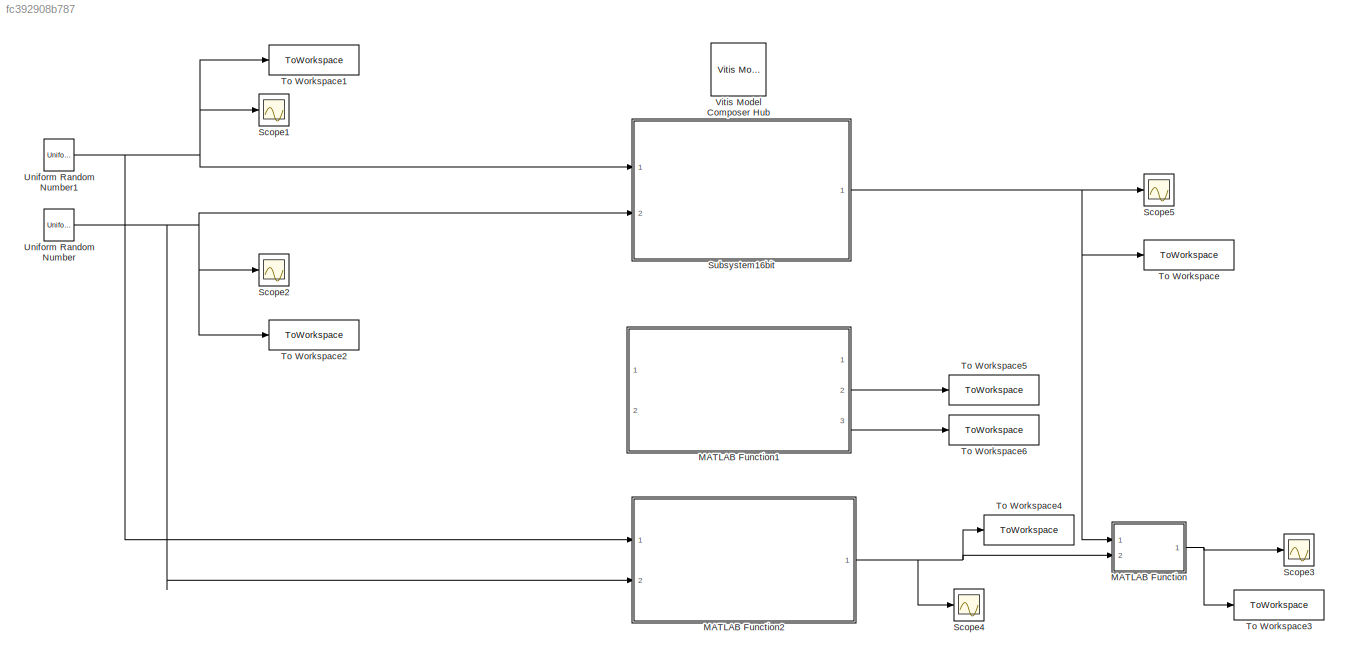
MODEL slx_fc392908b787
KIND model
CONFIG AbsTol = auto
CONFIG EnableMultiTasking = off
CONFIG FixedStep = auto
CONFIG MaxStep = auto
CONFIG MinStep = auto
CONFIG RelTol = 1e-3
CONFIG SampleTimeConstraint = Unconstrained
CONFIG SolverName = VariableStepAuto
CONFIG StartTime = 0.0
CONFIG StopTime = 99
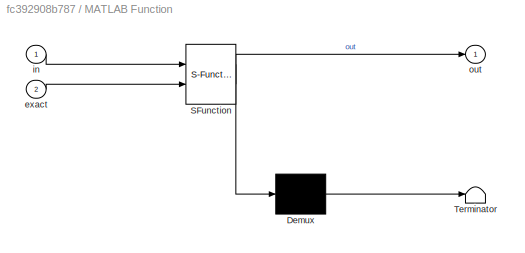
BLOCK [SubSystem] MATLAB Function
  ErrorFcn = Stateflow.Translate.translate
  PermitHierarchicalResolution = ExplicitOnly
  Ports = [2, 1]
  RequestExecContextInheritance = off
  SFBlockType = MATLAB Function
  TreatAsAtomicUnit = on
BLOCK [Demux] MATLAB Function/ Demux 
  Outputs = 1
  Ports = [1, 1]
BLOCK [S-Function] MATLAB Function/ SFunction 
  EnableBusSupport = on
  FunctionName = sf_sfun
  PortCounts = [2 2]
  Ports = [2, 2]
  SFcnIsStateOwnerBlock = off
  SFunctionDeploymentMode = off
  Tag = Stateflow S-Function 2
BLOCK [Terminator] MATLAB Function/ Terminator 
BLOCK [Inport] MATLAB Function/exact
  Port = 2
BLOCK [Inport] MATLAB Function/in
BLOCK [Outport] MATLAB Function/out
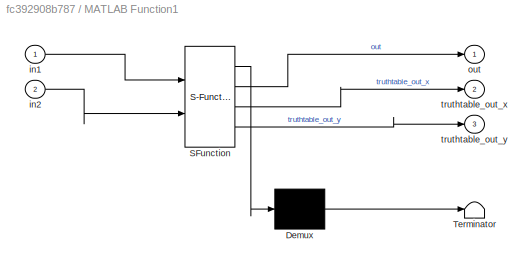
BLOCK [SubSystem] MATLAB Function1
  Commented = on
  ErrorFcn = Stateflow.Translate.translate
  PermitHierarchicalResolution = ExplicitOnly
  Ports = [2, 3]
  RequestExecContextInheritance = off
  SFBlockType = MATLAB Function
  TreatAsAtomicUnit = on
BLOCK [Demux] MATLAB Function1/ Demux 
  Outputs = 1
  Ports = [1, 1]
BLOCK [S-Function] MATLAB Function1/ SFunction 
  EnableBusSupport = on
  FunctionName = sf_sfun
  PortCounts = [2 4]
  Ports = [2, 4]
  SFcnIsStateOwnerBlock = off
  SFunctionDeploymentMode = off
  Tag = Stateflow S-Function 1
BLOCK [Terminator] MATLAB Function1/ Terminator 
BLOCK [Inport] MATLAB Function1/in1
BLOCK [Inport] MATLAB Function1/in2
  Port = 2
BLOCK [Outport] MATLAB Function1/out
BLOCK [Outport] MATLAB Function1/truthtable_out_x
  Port = 2
BLOCK [Outport] MATLAB Function1/truthtable_out_y
  Port = 3
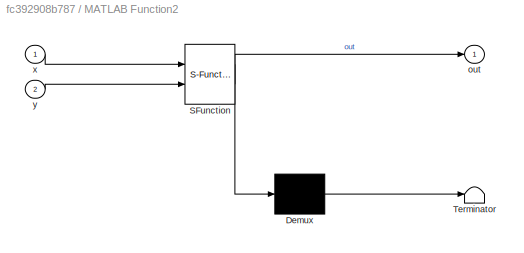
BLOCK [SubSystem] MATLAB Function2
  ErrorFcn = Stateflow.Translate.translate
  PermitHierarchicalResolution = ExplicitOnly
  Ports = [2, 1]
  RequestExecContextInheritance = off
  SFBlockType = MATLAB Function
  TreatAsAtomicUnit = on
BLOCK [Demux] MATLAB Function2/ Demux 
  Outputs = 1
  Ports = [1, 1]
BLOCK [S-Function] MATLAB Function2/ SFunction 
  EnableBusSupport = on
  FunctionName = sf_sfun
  PortCounts = [2 2]
  Ports = [2, 2]
  SFcnIsStateOwnerBlock = off
  SFunctionDeploymentMode = off
  Tag = Stateflow S-Function 3
BLOCK [Terminator] MATLAB Function2/ Terminator 
BLOCK [Outport] MATLAB Function2/out
BLOCK [Inport] MATLAB Function2/x
BLOCK [Inport] MATLAB Function2/y
  Port = 2
BLOCK [Scope] Scope1
  Floating = off
  NumInputPorts = 1
  Ports = [1]
  ScopeSpecificationString = Simulink.scopes.TimeScopeBlockCfg('CurrentConfiguration', extmgr.ConfigurationSet(extmgr.Configuration('Core','General UI',true),extmgr.Configuration('Core','Source UI',true),extmgr.Configuration('Sources','WiredSimulink',true,'DataLoggingVariableName','ScopeData1'),extmgr.Configuration('Visuals','Time Domain',true,'SerializedDisplays',{struct('MinYLimReal','-1.24415','MaxYLimReal','1.23259','YLab...<+1488ch>
BLOCK [Scope] Scope2
  Floating = off
  NumInputPorts = 1
  Ports = [1]
  ScopeSpecificationString = Simulink.scopes.TimeScopeBlockCfg('CurrentConfiguration', extmgr.ConfigurationSet(extmgr.Configuration('Core','General UI',true),extmgr.Configuration('Core','Source UI',true),extmgr.Configuration('Sources','WiredSimulink',true,'DataLoggingVariableName','ScopeData2'),extmgr.Configuration('Visuals','Time Domain',true,'SerializedDisplays',{struct('MinYLimReal','-1.24312','MaxYLimReal','1.24803','YLab...<+1450ch>
BLOCK [Scope] Scope3
  Floating = off
  NumInputPorts = 1
  Ports = [1]
  ScopeSpecificationString = Simulink.scopes.TimeScopeBlockCfg('CurrentConfiguration', extmgr.ConfigurationSet(extmgr.Configuration('Core','General UI',true),extmgr.Configuration('Core','Source UI',true),extmgr.Configuration('Sources','WiredSimulink',true,'DataLoggingVariableName','ScopeData3'),extmgr.Configuration('Visuals','Time Domain',true,'SerializedDisplays',{struct('MinYLimReal','-0.00031','MaxYLimReal','0.00283','YLab...<+1447ch>
BLOCK [Scope] Scope4
  Floating = off
  NumInputPorts = 1
  Ports = [1]
  ScopeSpecificationString = Simulink.scopes.TimeScopeBlockCfg('CurrentConfiguration', extmgr.ConfigurationSet(extmgr.Configuration('Core','General UI',true),extmgr.Configuration('Core','Source UI',true),extmgr.Configuration('Sources','WiredSimulink',true,'DataLoggingVariableName','ScopeData2'),extmgr.Configuration('Visuals','Time Domain',true,'SerializedDisplays',{struct('MinYLimReal','-0.12011','MaxYLimReal','1.09863','YLab...<+1488ch>
BLOCK [Scope] Scope5
  Floating = off
  NumInputPorts = 1
  Ports = [1]
  ScopeSpecificationString = Simulink.scopes.TimeScopeBlockCfg('CurrentConfiguration', extmgr.ConfigurationSet(extmgr.Configuration('Core','General UI',true),extmgr.Configuration('Core','Source UI',true),extmgr.Configuration('Sources','WiredSimulink',true,'DataLoggingVariableName','ScopeData1'),extmgr.Configuration('Visuals','Time Domain',true,'SerializedDisplays',{struct('MinYLimReal','-0.12011','MaxYLimReal','1.09863','YLab...<+1480ch>
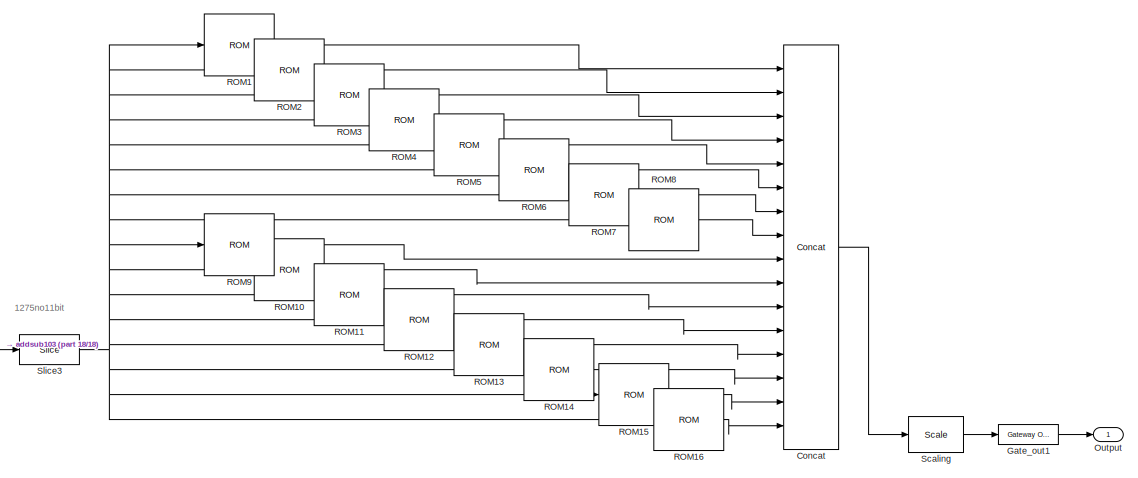
[diagram: Subsystem16bit - part 1/18, top right region]
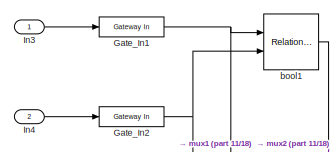
[diagram: Subsystem16bit - part 2/18, top left region]
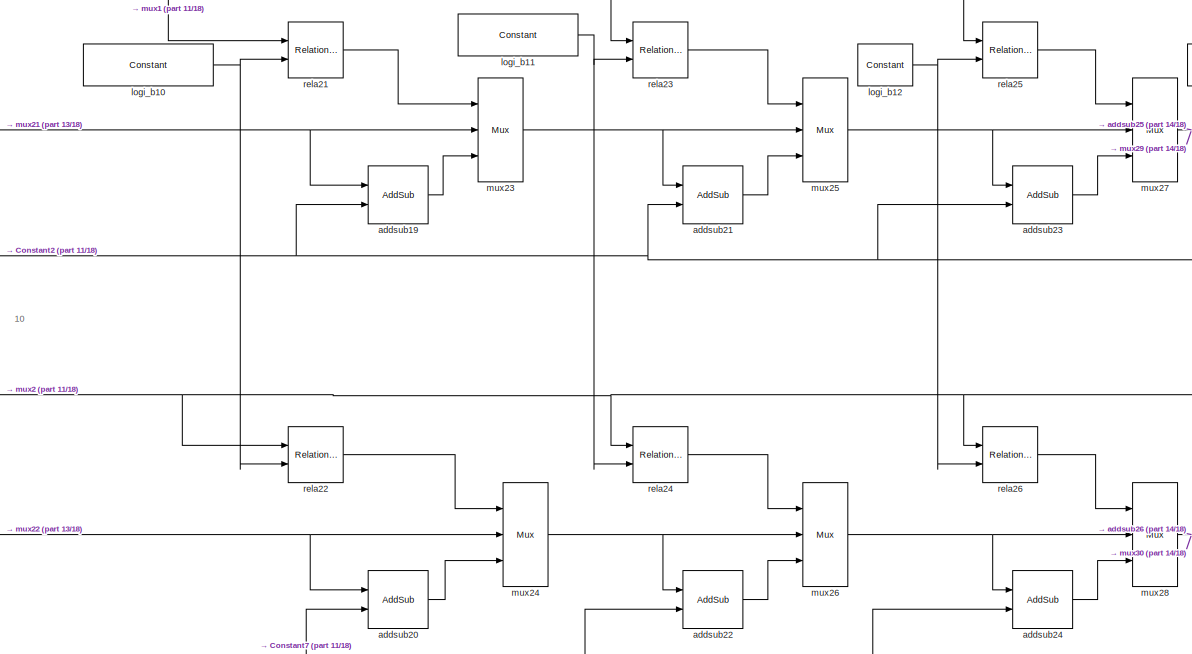
[diagram: Subsystem16bit - part 3/18, left side, full height]
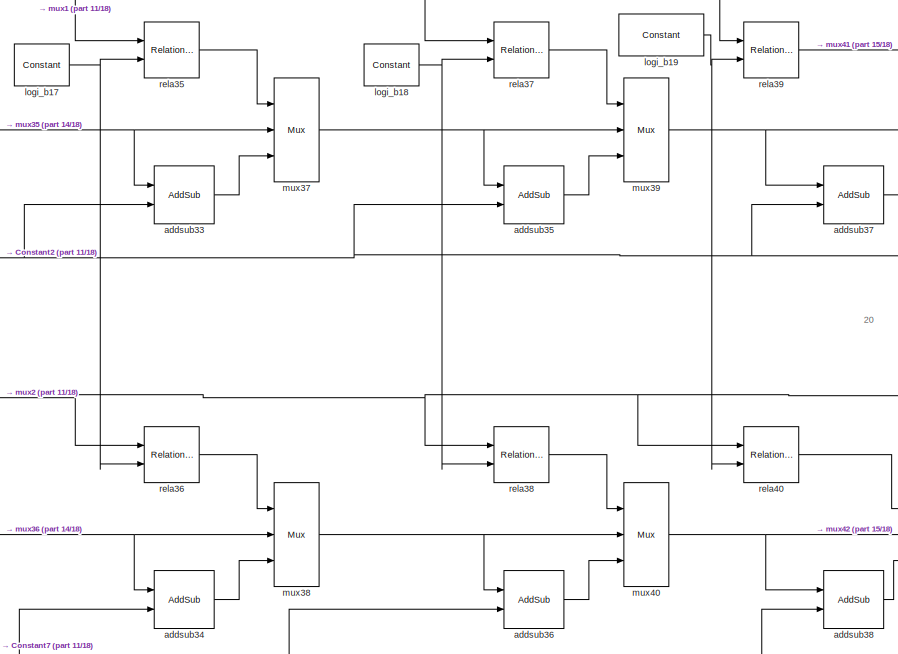
[diagram: Subsystem16bit - part 4/18, left side, full height]
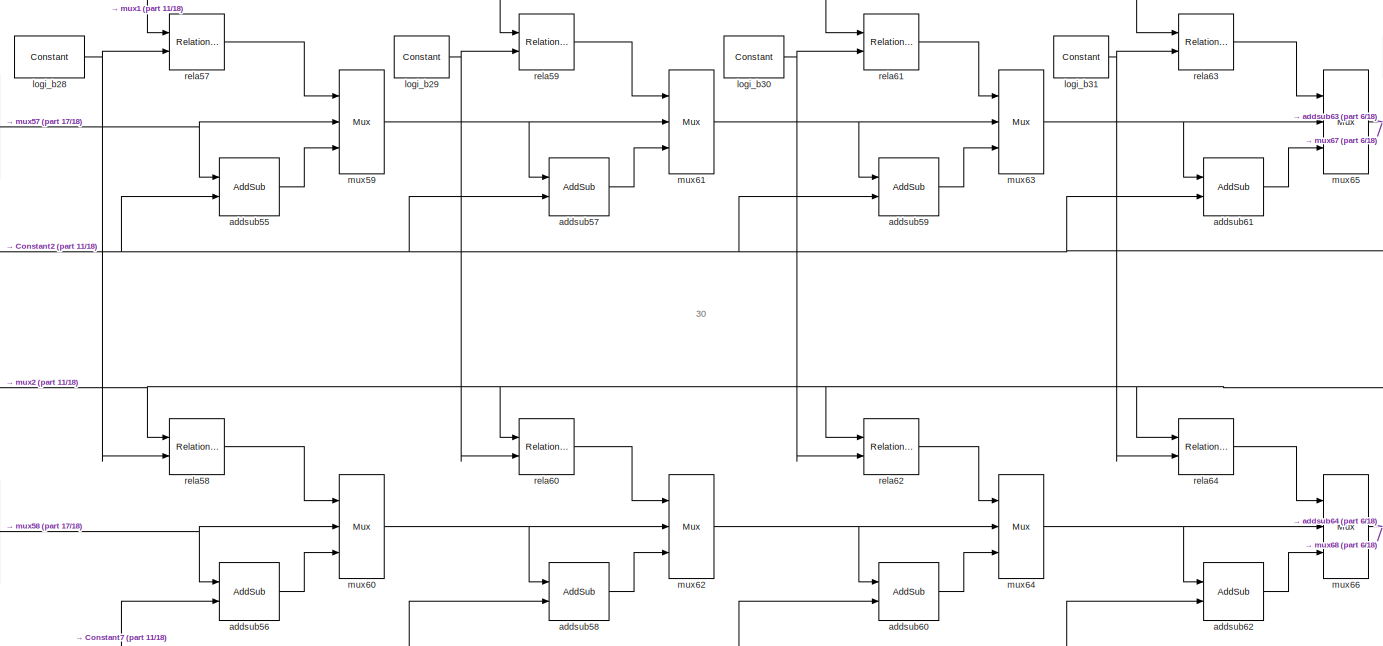
[diagram: Subsystem16bit - part 5/18, center side, full height]
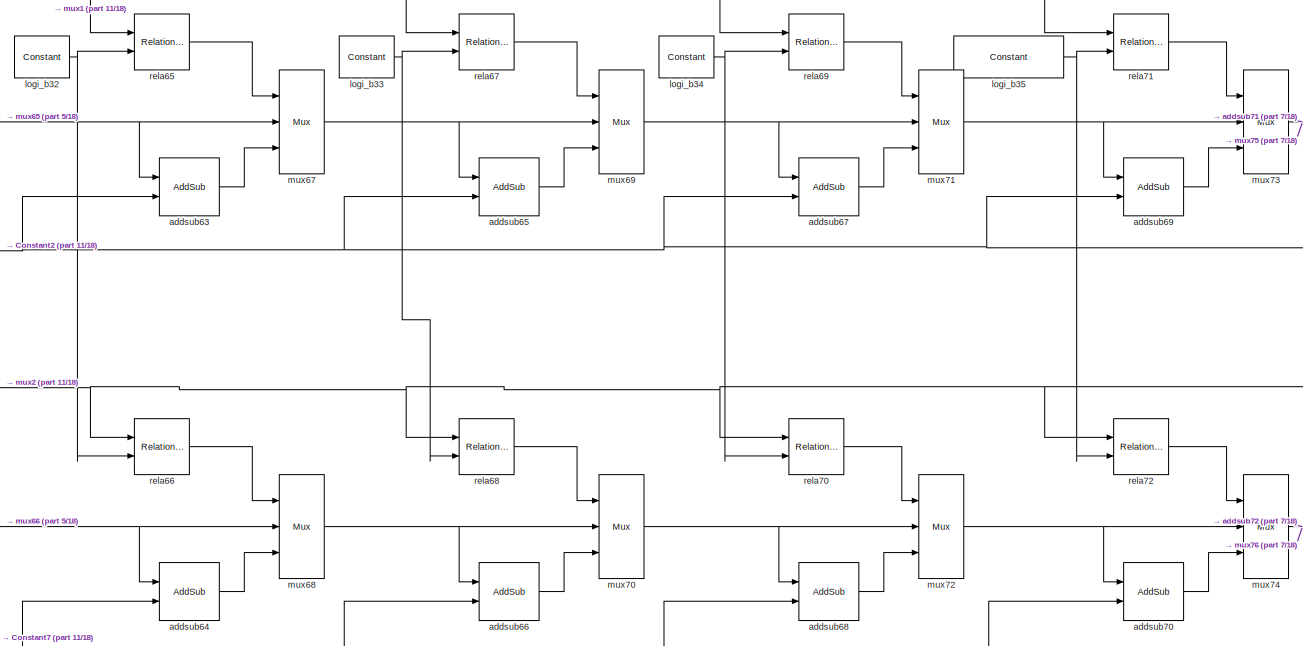
[diagram: Subsystem16bit - part 6/18, center side, full height]
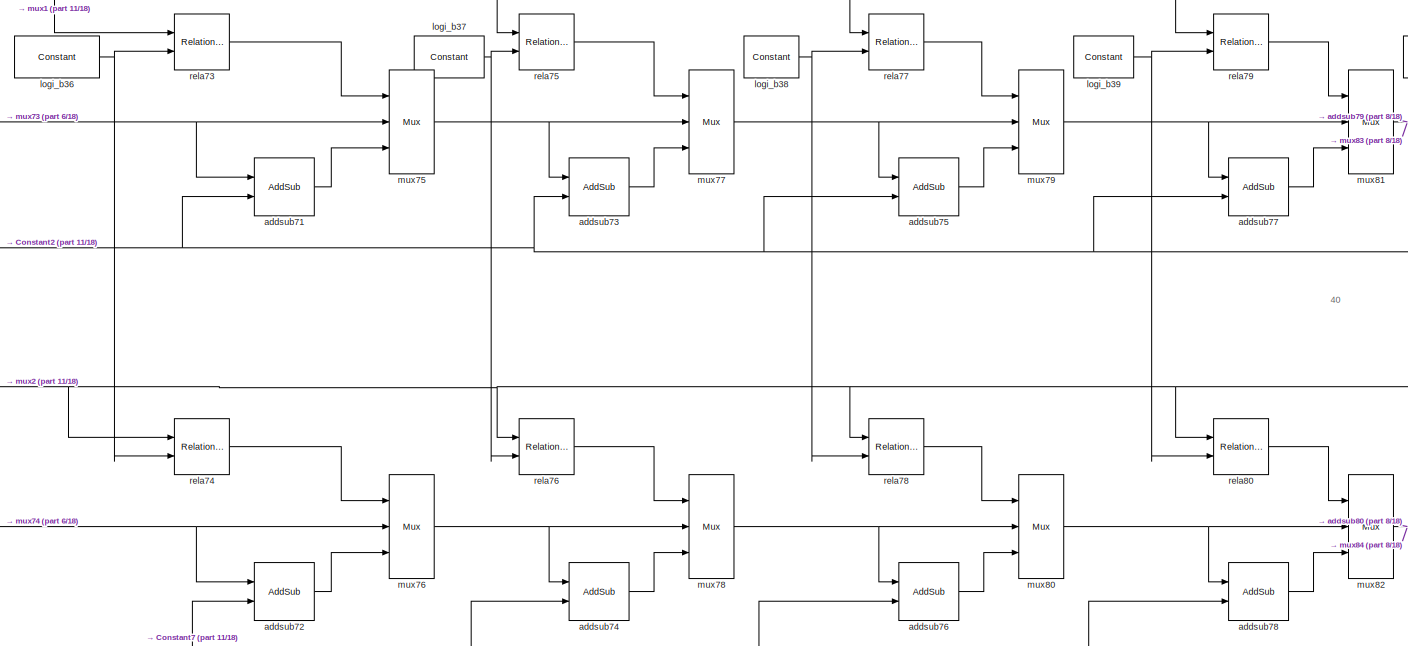
[diagram: Subsystem16bit - part 7/18, center side, full height]
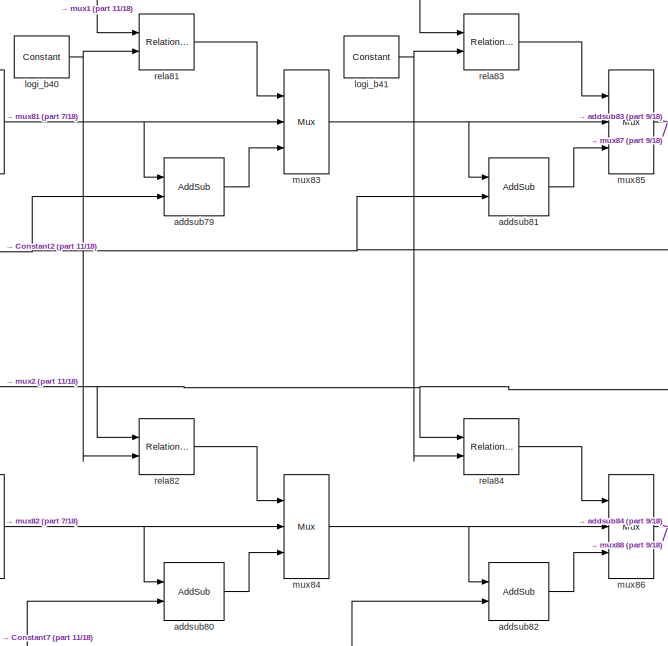
[diagram: Subsystem16bit - part 8/18, right side, full height]
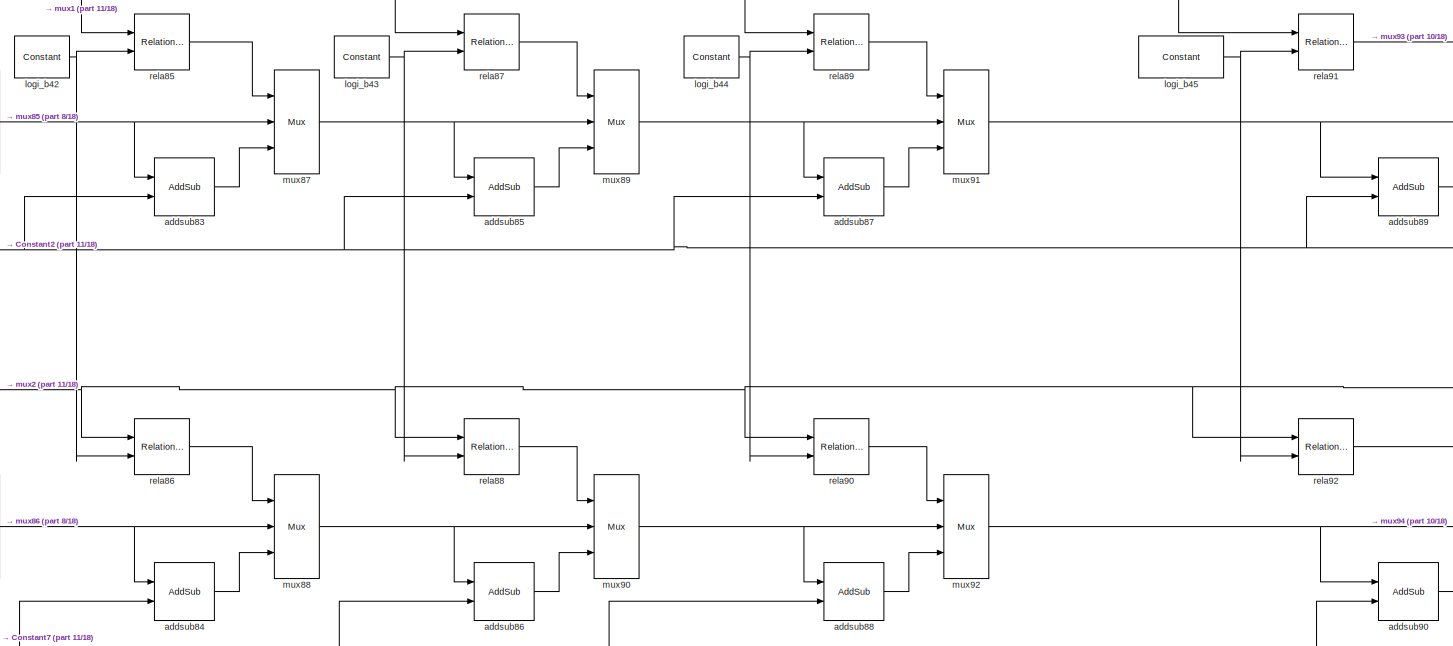
[diagram: Subsystem16bit - part 9/18, right side, full height]
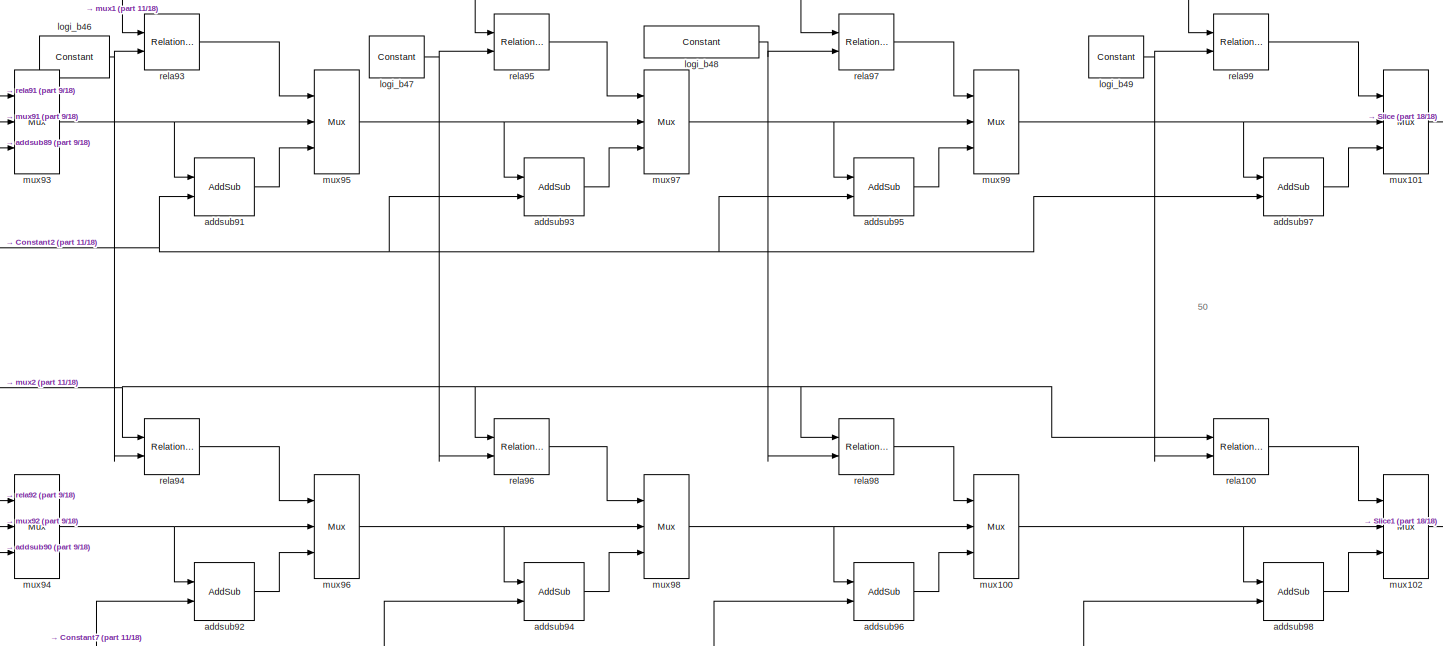
[diagram: Subsystem16bit - part 10/18, right side, full height]
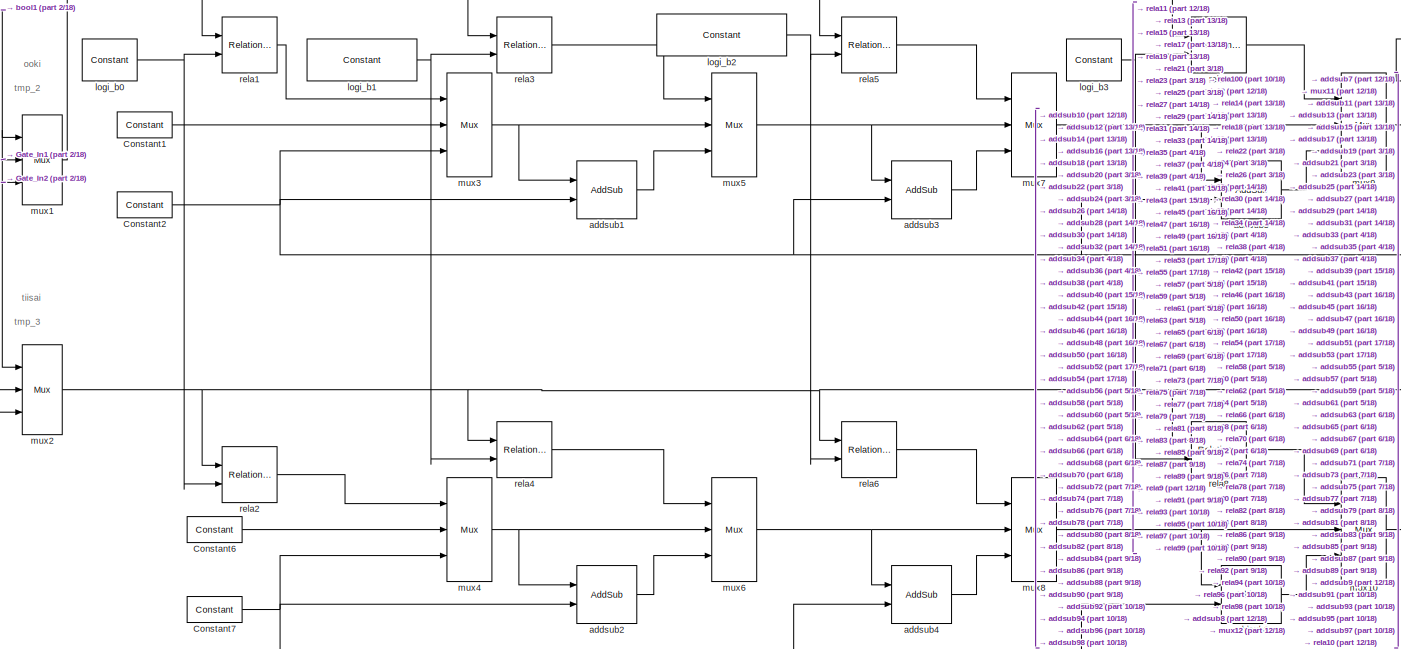
[diagram: Subsystem16bit - part 11/18, left side, full height]
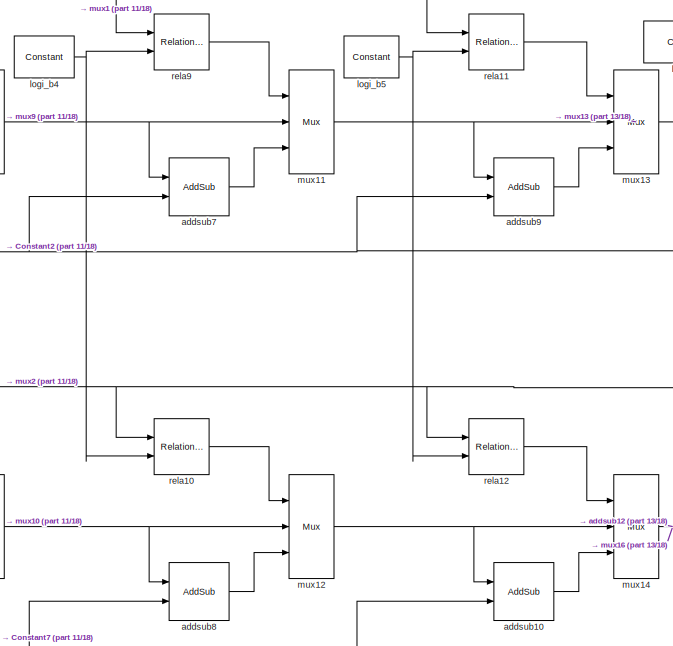
[diagram: Subsystem16bit - part 12/18, left side, full height]
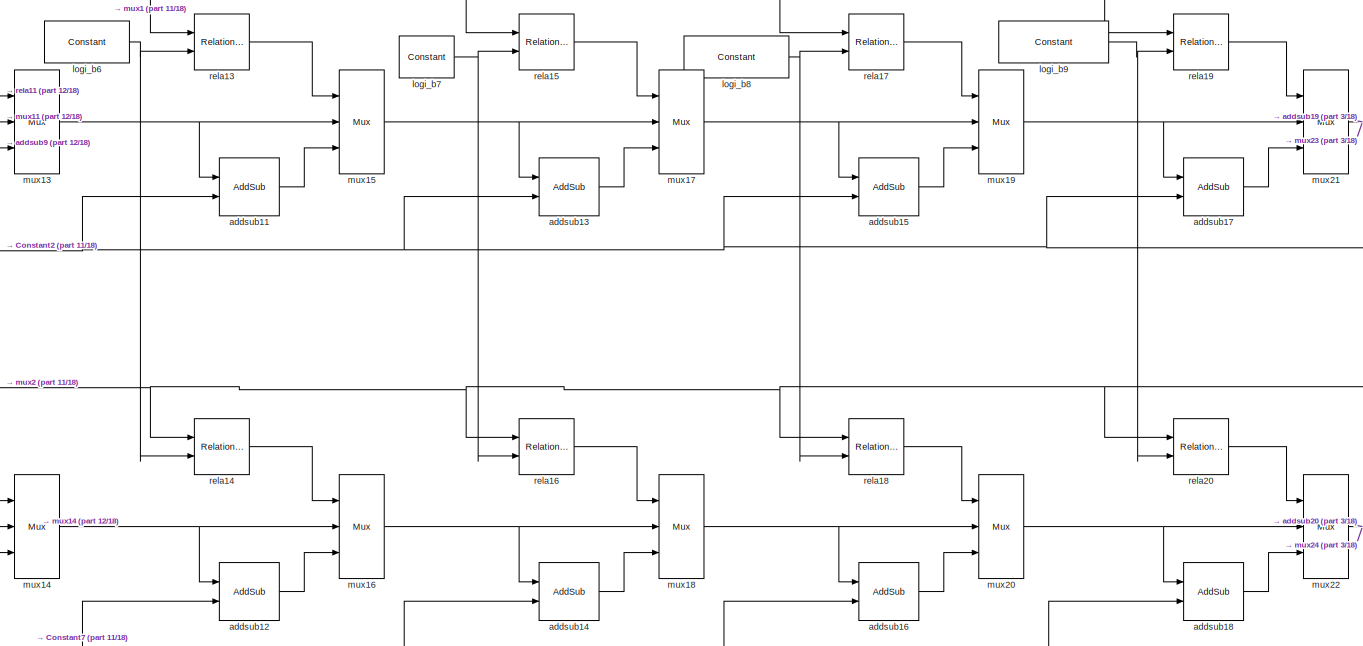
[diagram: Subsystem16bit - part 13/18, left side, full height]
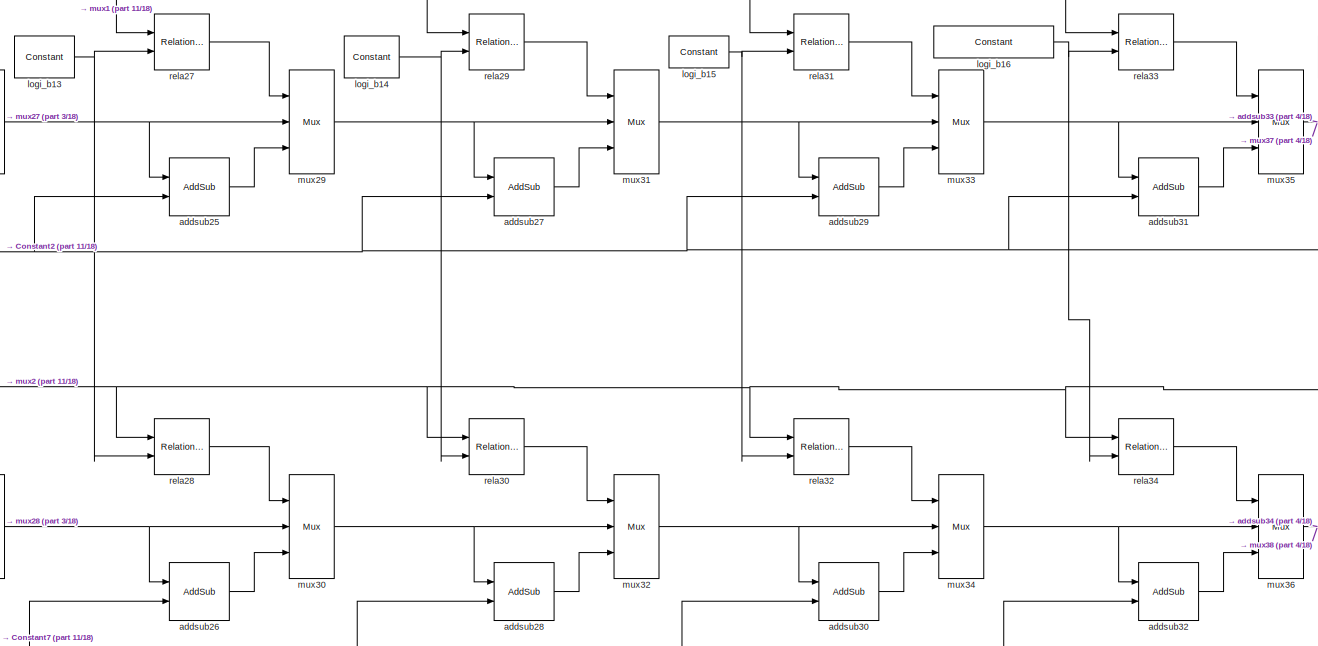
[diagram: Subsystem16bit - part 14/18, left side, full height]
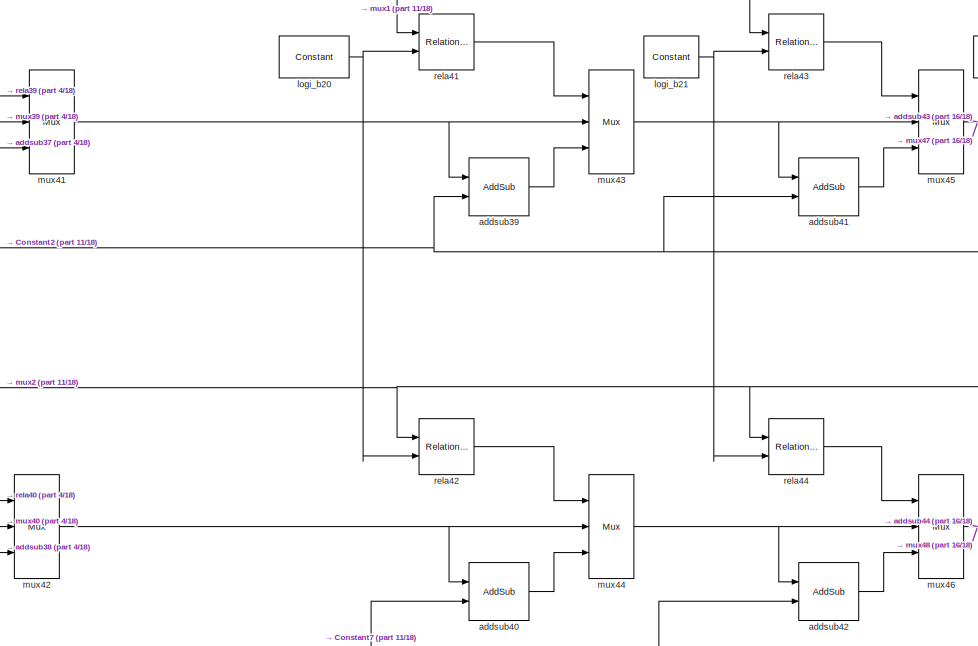
[diagram: Subsystem16bit - part 15/18, center side, full height]
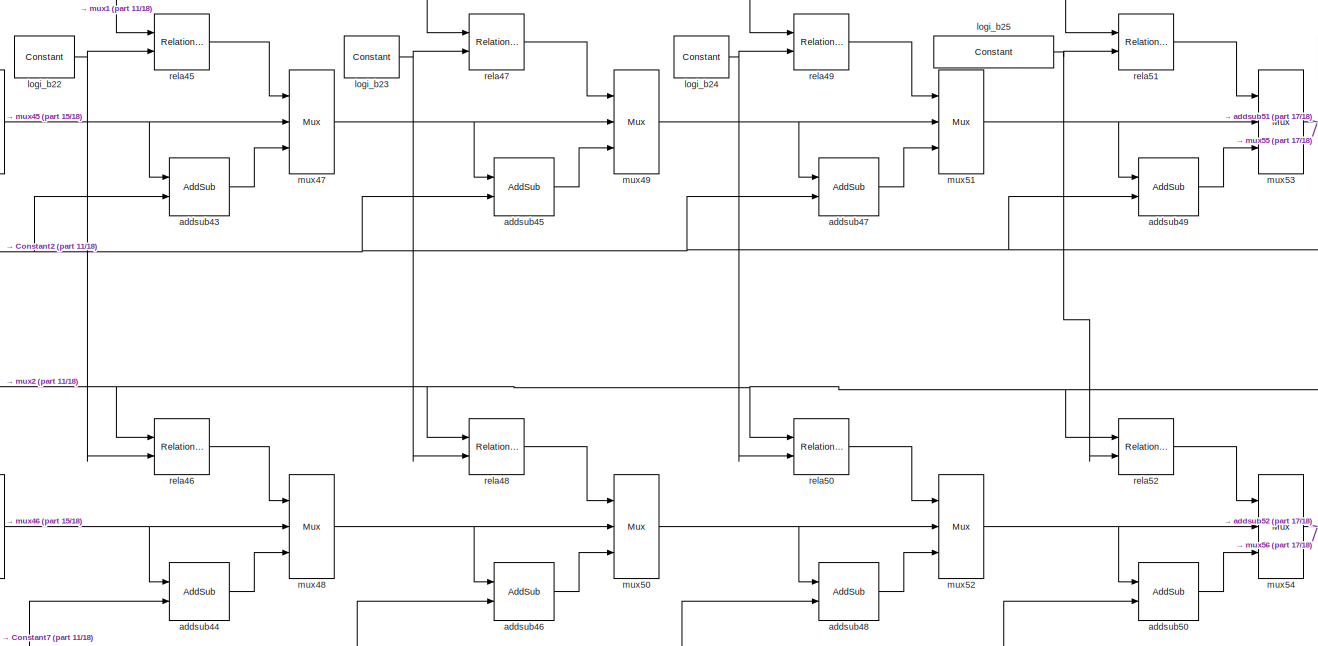
[diagram: Subsystem16bit - part 16/18, center side, full height]
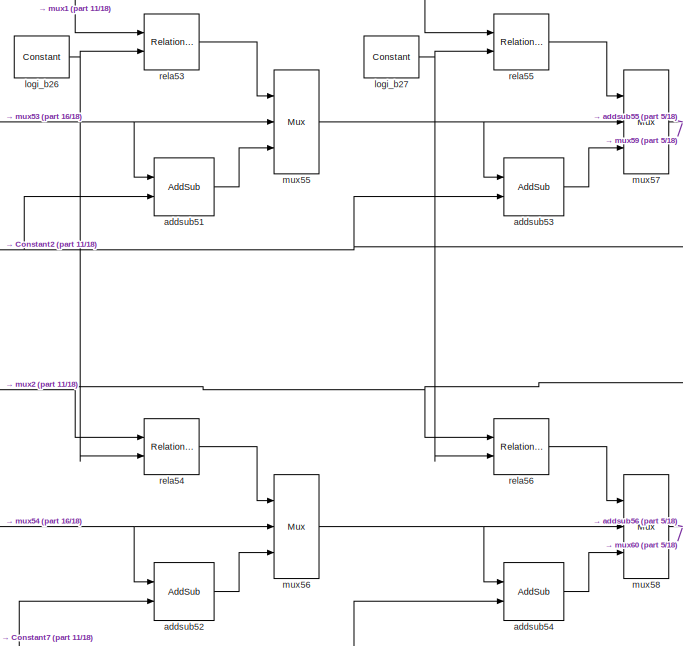
[diagram: Subsystem16bit - part 17/18, center side, full height]
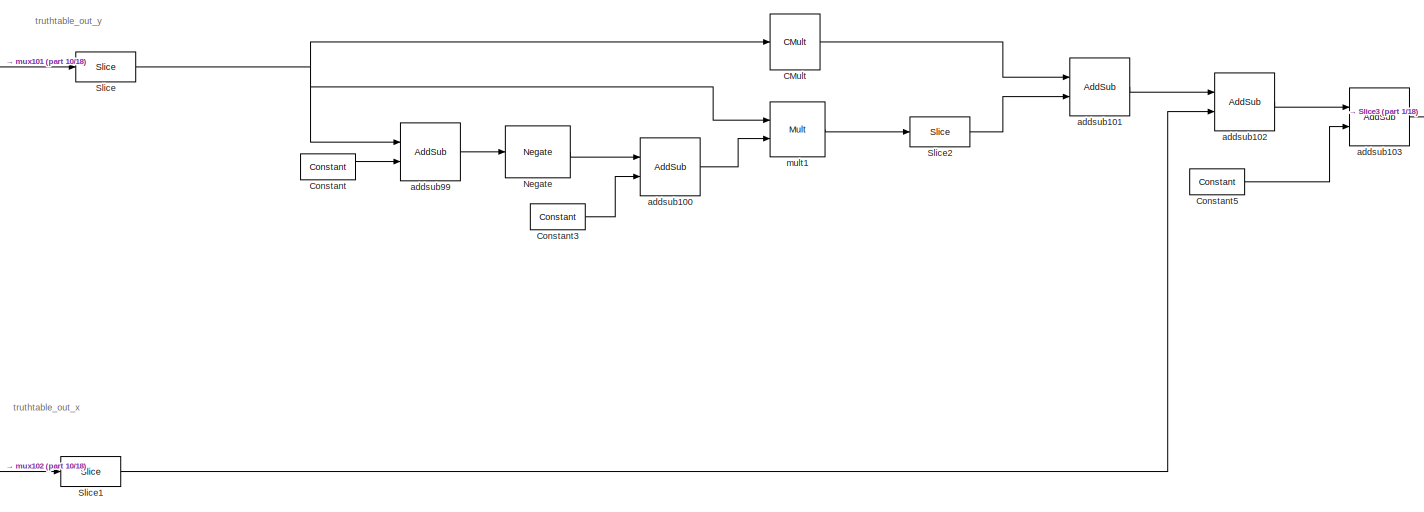
[diagram: Subsystem16bit - part 18/18, middle right region]
BLOCK [SubSystem] Subsystem16bit
  Ports = [2, 1]
  RequestExecContextInheritance = off
BLOCK [Reference] Subsystem16bit/CMult  REF=hdlBasic/CMult
  Ports = [1, 1]
  SourceBlock = hdlBasic/CMult
  SourceType = Constant Multiplier Block
BLOCK [Reference] Subsystem16bit/Concat  REF=hdlBasic/Concat
  Ports = [16, 1]
  SourceBlock = hdlBasic/Concat
  SourceType = Bus Concatenator Block
BLOCK [Reference] Subsystem16bit/Constant  REF=hdlBasic/Constant
  Ports = [0, 1]
  SourceBlock = hdlBasic/Constant
  SourceType = Constant Block Block
BLOCK [Reference] Subsystem16bit/Constant1  REF=hdlBasic/Constant
  Ports = [0, 1]
  SourceBlock = hdlBasic/Constant
  SourceType = Constant Block Block
BLOCK [Reference] Subsystem16bit/Constant2  REF=hdlBasic/Constant
  Ports = [0, 1]
  SourceBlock = hdlBasic/Constant
  SourceType = Constant Block Block
BLOCK [Reference] Subsystem16bit/Constant3  REF=hdlBasic/Constant
  Ports = [0, 1]
  SourceBlock = hdlBasic/Constant
  SourceType = Constant Block Block
BLOCK [Reference] Subsystem16bit/Constant5  REF=hdlBasic/Constant
  Ports = [0, 1]
  SourceBlock = hdlBasic/Constant
  SourceType = Constant Block Block
BLOCK [Reference] Subsystem16bit/Constant6  REF=hdlBasic/Constant
  Ports = [0, 1]
  SourceBlock = hdlBasic/Constant
  SourceType = Constant Block Block
BLOCK [Reference] Subsystem16bit/Constant7  REF=hdlBasic/Constant
  Ports = [0, 1]
  SourceBlock = hdlBasic/Constant
  SourceType = Constant Block Block
BLOCK [Reference] Subsystem16bit/Gate_In1  REF=hdlBasic/Gateway In
  Ports = [1, 1]
  SourceBlock = hdlBasic/Gateway In
  SourceType = Gateway In Block
BLOCK [Reference] Subsystem16bit/Gate_In2  REF=hdlBasic/Gateway In
  Ports = [1, 1]
  SourceBlock = hdlBasic/Gateway In
  SourceType = Gateway In Block
BLOCK [Reference] Subsystem16bit/Gate_out1  REF=hdlBasic/Gateway Out
  Ports = [1, 1]
  SourceBlock = hdlBasic/Gateway Out
  SourceType = Gateway Out Block
BLOCK [Inport] Subsystem16bit/In3
BLOCK [Inport] Subsystem16bit/In4
  Port = 2
BLOCK [Reference] Subsystem16bit/Negate  REF=hdlBasic/Negate
  Ports = [1, 1]
  SourceBlock = hdlBasic/Negate
  SourceType = Negate Block Block
BLOCK [Outport] Subsystem16bit/Output
BLOCK [Reference] Subsystem16bit/ROM1  REF=hdlBasic/ROM
  Ports = [1, 1]
  SourceBlock = hdlBasic/ROM
  SourceType = Single Port Read-Only Memory Block
BLOCK [Reference] Subsystem16bit/ROM10  REF=hdlBasic/ROM
  Ports = [1, 1]
  SourceBlock = hdlBasic/ROM
  SourceType = Single Port Read-Only Memory Block
BLOCK [Reference] Subsystem16bit/ROM11  REF=hdlBasic/ROM
  Ports = [1, 1]
  SourceBlock = hdlBasic/ROM
  SourceType = Single Port Read-Only Memory Block
BLOCK [Reference] Subsystem16bit/ROM12  REF=hdlBasic/ROM
  Ports = [1, 1]
  SourceBlock = hdlBasic/ROM
  SourceType = Single Port Read-Only Memory Block
BLOCK [Reference] Subsystem16bit/ROM13  REF=hdlBasic/ROM
  Ports = [1, 1]
  SourceBlock = hdlBasic/ROM
  SourceType = Single Port Read-Only Memory Block
BLOCK [Reference] Subsystem16bit/ROM14  REF=hdlBasic/ROM
  Ports = [1, 1]
  SourceBlock = hdlBasic/ROM
  SourceType = Single Port Read-Only Memory Block
BLOCK [Reference] Subsystem16bit/ROM15  REF=hdlBasic/ROM
  Ports = [1, 1]
  SourceBlock = hdlBasic/ROM
  SourceType = Single Port Read-Only Memory Block
BLOCK [Reference] Subsystem16bit/ROM16  REF=hdlBasic/ROM
  Ports = [1, 1]
  SourceBlock = hdlBasic/ROM
  SourceType = Single Port Read-Only Memory Block
BLOCK [Reference] Subsystem16bit/ROM2  REF=hdlBasic/ROM
  Ports = [1, 1]
  SourceBlock = hdlBasic/ROM
  SourceType = Single Port Read-Only Memory Block
BLOCK [Reference] Subsystem16bit/ROM3  REF=hdlBasic/ROM
  Ports = [1, 1]
  SourceBlock = hdlBasic/ROM
  SourceType = Single Port Read-Only Memory Block
BLOCK [Reference] Subsystem16bit/ROM4  REF=hdlBasic/ROM
  Ports = [1, 1]
  SourceBlock = hdlBasic/ROM
  SourceType = Single Port Read-Only Memory Block
BLOCK [Reference] Subsystem16bit/ROM5  REF=hdlBasic/ROM
  Ports = [1, 1]
  SourceBlock = hdlBasic/ROM
  SourceType = Single Port Read-Only Memory Block
BLOCK [Reference] Subsystem16bit/ROM6  REF=hdlBasic/ROM
  Ports = [1, 1]
  SourceBlock = hdlBasic/ROM
  SourceType = Single Port Read-Only Memory Block
BLOCK [Reference] Subsystem16bit/ROM7  REF=hdlBasic/ROM
  Ports = [1, 1]
  SourceBlock = hdlBasic/ROM
  SourceType = Single Port Read-Only Memory Block
BLOCK [Reference] Subsystem16bit/ROM8  REF=hdlBasic/ROM
  Ports = [1, 1]
  SourceBlock = hdlBasic/ROM
  SourceType = Single Port Read-Only Memory Block
BLOCK [Reference] Subsystem16bit/ROM9  REF=hdlBasic/ROM
  Ports = [1, 1]
  SourceBlock = hdlBasic/ROM
  SourceType = Single Port Read-Only Memory Block
BLOCK [Reference] Subsystem16bit/Scaling  REF=hdlBasic/Scale
  Ports = [1, 1]
  SourceBlock = hdlBasic/Scale
  SourceType = Input Scaler Block
BLOCK [Reference] Subsystem16bit/Slice  REF=hdlBasic/Slice
  Ports = [1, 1]
  SourceBlock = hdlBasic/Slice
  SourceType = Bit Slice Extractor Block
BLOCK [Reference] Subsystem16bit/Slice1  REF=hdlBasic/Slice
  Ports = [1, 1]
  SourceBlock = hdlBasic/Slice
  SourceType = Bit Slice Extractor Block
BLOCK [Reference] Subsystem16bit/Slice2  REF=hdlBasic/Slice
  Ports = [1, 1]
  SourceBlock = hdlBasic/Slice
  SourceType = Bit Slice Extractor Block
BLOCK [Reference] Subsystem16bit/Slice3  REF=hdlBasic/Slice
  Ports = [1, 1]
  SourceBlock = hdlBasic/Slice
  SourceType = Bit Slice Extractor Block
BLOCK [Reference] Subsystem16bit/addsub1  REF=hdlBasic/AddSub
  Ports = [2, 1]
  SourceBlock = hdlBasic/AddSub
  SourceType = Adder/Subtracter Block
BLOCK [Reference] Subsystem16bit/addsub10  REF=hdlBasic/AddSub
  Ports = [2, 1]
  SourceBlock = hdlBasic/AddSub
  SourceType = Adder/Subtracter Block
BLOCK [Reference] Subsystem16bit/addsub100  REF=hdlBasic/AddSub
  Ports = [2, 1]
  SourceBlock = hdlBasic/AddSub
  SourceType = Adder/Subtracter Block
BLOCK [Reference] Subsystem16bit/addsub101  REF=hdlBasic/AddSub
  Ports = [2, 1]
  SourceBlock = hdlBasic/AddSub
  SourceType = Adder/Subtracter Block
BLOCK [Reference] Subsystem16bit/addsub102  REF=hdlBasic/AddSub
  Ports = [2, 1]
  SourceBlock = hdlBasic/AddSub
  SourceType = Adder/Subtracter Block
BLOCK [Reference] Subsystem16bit/addsub103  REF=hdlBasic/AddSub
  Ports = [2, 1]
  SourceBlock = hdlBasic/AddSub
  SourceType = Adder/Subtracter Block
BLOCK [Reference] Subsystem16bit/addsub11  REF=hdlBasic/AddSub
  Ports = [2, 1]
  SourceBlock = hdlBasic/AddSub
  SourceType = Adder/Subtracter Block
BLOCK [Reference] Subsystem16bit/addsub12  REF=hdlBasic/AddSub
  Ports = [2, 1]
  SourceBlock = hdlBasic/AddSub
  SourceType = Adder/Subtracter Block
BLOCK [Reference] Subsystem16bit/addsub13  REF=hdlBasic/AddSub
  Ports = [2, 1]
  SourceBlock = hdlBasic/AddSub
  SourceType = Adder/Subtracter Block
BLOCK [Reference] Subsystem16bit/addsub14  REF=hdlBasic/AddSub
  Ports = [2, 1]
  SourceBlock = hdlBasic/AddSub
  SourceType = Adder/Subtracter Block
BLOCK [Reference] Subsystem16bit/addsub15  REF=hdlBasic/AddSub
  Ports = [2, 1]
  SourceBlock = hdlBasic/AddSub
  SourceType = Adder/Subtracter Block
BLOCK [Reference] Subsystem16bit/addsub16  REF=hdlBasic/AddSub
  Ports = [2, 1]
  SourceBlock = hdlBasic/AddSub
  SourceType = Adder/Subtracter Block
BLOCK [Reference] Subsystem16bit/addsub17  REF=hdlBasic/AddSub
  Ports = [2, 1]
  SourceBlock = hdlBasic/AddSub
  SourceType = Adder/Subtracter Block
BLOCK [Reference] Subsystem16bit/addsub18  REF=hdlBasic/AddSub
  Ports = [2, 1]
  SourceBlock = hdlBasic/AddSub
  SourceType = Adder/Subtracter Block
BLOCK [Reference] Subsystem16bit/addsub19  REF=hdlBasic/AddSub
  Ports = [2, 1]
  SourceBlock = hdlBasic/AddSub
  SourceType = Adder/Subtracter Block
BLOCK [Reference] Subsystem16bit/addsub2  REF=hdlBasic/AddSub
  Ports = [2, 1]
  SourceBlock = hdlBasic/AddSub
  SourceType = Adder/Subtracter Block
BLOCK [Reference] Subsystem16bit/addsub20  REF=hdlBasic/AddSub
  Ports = [2, 1]
  SourceBlock = hdlBasic/AddSub
  SourceType = Adder/Subtracter Block
BLOCK [Reference] Subsystem16bit/addsub21  REF=hdlBasic/AddSub
  Ports = [2, 1]
  SourceBlock = hdlBasic/AddSub
  SourceType = Adder/Subtracter Block
BLOCK [Reference] Subsystem16bit/addsub22  REF=hdlBasic/AddSub
  Ports = [2, 1]
  SourceBlock = hdlBasic/AddSub
  SourceType = Adder/Subtracter Block
BLOCK [Reference] Subsystem16bit/addsub23  REF=hdlBasic/AddSub
  Ports = [2, 1]
  SourceBlock = hdlBasic/AddSub
  SourceType = Adder/Subtracter Block
BLOCK [Reference] Subsystem16bit/addsub24  REF=hdlBasic/AddSub
  Ports = [2, 1]
  SourceBlock = hdlBasic/AddSub
  SourceType = Adder/Subtracter Block
BLOCK [Reference] Subsystem16bit/addsub25  REF=hdlBasic/AddSub
  Ports = [2, 1]
  SourceBlock = hdlBasic/AddSub
  SourceType = Adder/Subtracter Block
BLOCK [Reference] Subsystem16bit/addsub26  REF=hdlBasic/AddSub
  Ports = [2, 1]
  SourceBlock = hdlBasic/AddSub
  SourceType = Adder/Subtracter Block
BLOCK [Reference] Subsystem16bit/addsub27  REF=hdlBasic/AddSub
  Ports = [2, 1]
  SourceBlock = hdlBasic/AddSub
  SourceType = Adder/Subtracter Block
BLOCK [Reference] Subsystem16bit/addsub28  REF=hdlBasic/AddSub
  Ports = [2, 1]
  SourceBlock = hdlBasic/AddSub
  SourceType = Adder/Subtracter Block
BLOCK [Reference] Subsystem16bit/addsub29  REF=hdlBasic/AddSub
  Ports = [2, 1]
  SourceBlock = hdlBasic/AddSub
  SourceType = Adder/Subtracter Block
BLOCK [Reference] Subsystem16bit/addsub3  REF=hdlBasic/AddSub
  Ports = [2, 1]
  SourceBlock = hdlBasic/AddSub
  SourceType = Adder/Subtracter Block
BLOCK [Reference] Subsystem16bit/addsub30  REF=hdlBasic/AddSub
  Ports = [2, 1]
  SourceBlock = hdlBasic/AddSub
  SourceType = Adder/Subtracter Block
BLOCK [Reference] Subsystem16bit/addsub31  REF=hdlBasic/AddSub
  Ports = [2, 1]
  SourceBlock = hdlBasic/AddSub
  SourceType = Adder/Subtracter Block
BLOCK [Reference] Subsystem16bit/addsub32  REF=hdlBasic/AddSub
  Ports = [2, 1]
  SourceBlock = hdlBasic/AddSub
  SourceType = Adder/Subtracter Block
BLOCK [Reference] Subsystem16bit/addsub33  REF=hdlBasic/AddSub
  Ports = [2, 1]
  SourceBlock = hdlBasic/AddSub
  SourceType = Adder/Subtracter Block
BLOCK [Reference] Subsystem16bit/addsub34  REF=hdlBasic/AddSub
  Ports = [2, 1]
  SourceBlock = hdlBasic/AddSub
  SourceType = Adder/Subtracter Block
BLOCK [Reference] Subsystem16bit/addsub35  REF=hdlBasic/AddSub
  Ports = [2, 1]
  SourceBlock = hdlBasic/AddSub
  SourceType = Adder/Subtracter Block
BLOCK [Reference] Subsystem16bit/addsub36  REF=hdlBasic/AddSub
  Ports = [2, 1]
  SourceBlock = hdlBasic/AddSub
  SourceType = Adder/Subtracter Block
BLOCK [Reference] Subsystem16bit/addsub37  REF=hdlBasic/AddSub
  Ports = [2, 1]
  SourceBlock = hdlBasic/AddSub
  SourceType = Adder/Subtracter Block
BLOCK [Reference] Subsystem16bit/addsub38  REF=hdlBasic/AddSub
  Ports = [2, 1]
  SourceBlock = hdlBasic/AddSub
  SourceType = Adder/Subtracter Block
BLOCK [Reference] Subsystem16bit/addsub39  REF=hdlBasic/AddSub
  Ports = [2, 1]
  SourceBlock = hdlBasic/AddSub
  SourceType = Adder/Subtracter Block
BLOCK [Reference] Subsystem16bit/addsub4  REF=hdlBasic/AddSub
  Ports = [2, 1]
  SourceBlock = hdlBasic/AddSub
  SourceType = Adder/Subtracter Block
BLOCK [Reference] Subsystem16bit/addsub40  REF=hdlBasic/AddSub
  Ports = [2, 1]
  SourceBlock = hdlBasic/AddSub
  SourceType = Adder/Subtracter Block
BLOCK [Reference] Subsystem16bit/addsub41  REF=hdlBasic/AddSub
  Ports = [2, 1]
  SourceBlock = hdlBasic/AddSub
  SourceType = Adder/Subtracter Block
BLOCK [Reference] Subsystem16bit/addsub42  REF=hdlBasic/AddSub
  Ports = [2, 1]
  SourceBlock = hdlBasic/AddSub
  SourceType = Adder/Subtracter Block
BLOCK [Reference] Subsystem16bit/addsub43  REF=hdlBasic/AddSub
  Ports = [2, 1]
  SourceBlock = hdlBasic/AddSub
  SourceType = Adder/Subtracter Block
BLOCK [Reference] Subsystem16bit/addsub44  REF=hdlBasic/AddSub
  Ports = [2, 1]
  SourceBlock = hdlBasic/AddSub
  SourceType = Adder/Subtracter Block
BLOCK [Reference] Subsystem16bit/addsub45  REF=hdlBasic/AddSub
  Ports = [2, 1]
  SourceBlock = hdlBasic/AddSub
  SourceType = Adder/Subtracter Block
BLOCK [Reference] Subsystem16bit/addsub46  REF=hdlBasic/AddSub
  Ports = [2, 1]
  SourceBlock = hdlBasic/AddSub
  SourceType = Adder/Subtracter Block
BLOCK [Reference] Subsystem16bit/addsub47  REF=hdlBasic/AddSub
  Ports = [2, 1]
  SourceBlock = hdlBasic/AddSub
  SourceType = Adder/Subtracter Block
BLOCK [Reference] Subsystem16bit/addsub48  REF=hdlBasic/AddSub
  Ports = [2, 1]
  SourceBlock = hdlBasic/AddSub
  SourceType = Adder/Subtracter Block
BLOCK [Reference] Subsystem16bit/addsub49  REF=hdlBasic/AddSub
  Ports = [2, 1]
  SourceBlock = hdlBasic/AddSub
  SourceType = Adder/Subtracter Block
BLOCK [Reference] Subsystem16bit/addsub5  REF=hdlBasic/AddSub
  Ports = [2, 1]
  SourceBlock = hdlBasic/AddSub
  SourceType = Adder/Subtracter Block
BLOCK [Reference] Subsystem16bit/addsub50  REF=hdlBasic/AddSub
  Ports = [2, 1]
  SourceBlock = hdlBasic/AddSub
  SourceType = Adder/Subtracter Block
BLOCK [Reference] Subsystem16bit/addsub51  REF=hdlBasic/AddSub
  Ports = [2, 1]
  SourceBlock = hdlBasic/AddSub
  SourceType = Adder/Subtracter Block
BLOCK [Reference] Subsystem16bit/addsub52  REF=hdlBasic/AddSub
  Ports = [2, 1]
  SourceBlock = hdlBasic/AddSub
  SourceType = Adder/Subtracter Block
BLOCK [Reference] Subsystem16bit/addsub53  REF=hdlBasic/AddSub
  Ports = [2, 1]
  SourceBlock = hdlBasic/AddSub
  SourceType = Adder/Subtracter Block
BLOCK [Reference] Subsystem16bit/addsub54  REF=hdlBasic/AddSub
  Ports = [2, 1]
  SourceBlock = hdlBasic/AddSub
  SourceType = Adder/Subtracter Block
BLOCK [Reference] Subsystem16bit/addsub55  REF=hdlBasic/AddSub
  Ports = [2, 1]
  SourceBlock = hdlBasic/AddSub
  SourceType = Adder/Subtracter Block
BLOCK [Reference] Subsystem16bit/addsub56  REF=hdlBasic/AddSub
  Ports = [2, 1]
  SourceBlock = hdlBasic/AddSub
  SourceType = Adder/Subtracter Block
BLOCK [Reference] Subsystem16bit/addsub57  REF=hdlBasic/AddSub
  Ports = [2, 1]
  SourceBlock = hdlBasic/AddSub
  SourceType = Adder/Subtracter Block
BLOCK [Reference] Subsystem16bit/addsub58  REF=hdlBasic/AddSub
  Ports = [2, 1]
  SourceBlock = hdlBasic/AddSub
  SourceType = Adder/Subtracter Block
BLOCK [Reference] Subsystem16bit/addsub59  REF=hdlBasic/AddSub
  Ports = [2, 1]
  SourceBlock = hdlBasic/AddSub
  SourceType = Adder/Subtracter Block
BLOCK [Reference] Subsystem16bit/addsub6  REF=hdlBasic/AddSub
  Ports = [2, 1]
  SourceBlock = hdlBasic/AddSub
  SourceType = Adder/Subtracter Block
BLOCK [Reference] Subsystem16bit/addsub60  REF=hdlBasic/AddSub
  Ports = [2, 1]
  SourceBlock = hdlBasic/AddSub
  SourceType = Adder/Subtracter Block
BLOCK [Reference] Subsystem16bit/addsub61  REF=hdlBasic/AddSub
  Ports = [2, 1]
  SourceBlock = hdlBasic/AddSub
  SourceType = Adder/Subtracter Block
BLOCK [Reference] Subsystem16bit/addsub62  REF=hdlBasic/AddSub
  Ports = [2, 1]
  SourceBlock = hdlBasic/AddSub
  SourceType = Adder/Subtracter Block
BLOCK [Reference] Subsystem16bit/addsub63  REF=hdlBasic/AddSub
  Ports = [2, 1]
  SourceBlock = hdlBasic/AddSub
  SourceType = Adder/Subtracter Block
BLOCK [Reference] Subsystem16bit/addsub64  REF=hdlBasic/AddSub
  Ports = [2, 1]
  SourceBlock = hdlBasic/AddSub
  SourceType = Adder/Subtracter Block
BLOCK [Reference] Subsystem16bit/addsub65  REF=hdlBasic/AddSub
  Ports = [2, 1]
  SourceBlock = hdlBasic/AddSub
  SourceType = Adder/Subtracter Block
BLOCK [Reference] Subsystem16bit/addsub66  REF=hdlBasic/AddSub
  Ports = [2, 1]
  SourceBlock = hdlBasic/AddSub
  SourceType = Adder/Subtracter Block
BLOCK [Reference] Subsystem16bit/addsub67  REF=hdlBasic/AddSub
  Ports = [2, 1]
  SourceBlock = hdlBasic/AddSub
  SourceType = Adder/Subtracter Block
BLOCK [Reference] Subsystem16bit/addsub68  REF=hdlBasic/AddSub
  Ports = [2, 1]
  SourceBlock = hdlBasic/AddSub
  SourceType = Adder/Subtracter Block
BLOCK [Reference] Subsystem16bit/addsub69  REF=hdlBasic/AddSub
  Ports = [2, 1]
  SourceBlock = hdlBasic/AddSub
  SourceType = Adder/Subtracter Block
BLOCK [Reference] Subsystem16bit/addsub7  REF=hdlBasic/AddSub
  Ports = [2, 1]
  SourceBlock = hdlBasic/AddSub
  SourceType = Adder/Subtracter Block
BLOCK [Reference] Subsystem16bit/addsub70  REF=hdlBasic/AddSub
  Ports = [2, 1]
  SourceBlock = hdlBasic/AddSub
  SourceType = Adder/Subtracter Block
BLOCK [Reference] Subsystem16bit/addsub71  REF=hdlBasic/AddSub
  Ports = [2, 1]
  SourceBlock = hdlBasic/AddSub
  SourceType = Adder/Subtracter Block
BLOCK [Reference] Subsystem16bit/addsub72  REF=hdlBasic/AddSub
  Ports = [2, 1]
  SourceBlock = hdlBasic/AddSub
  SourceType = Adder/Subtracter Block
BLOCK [Reference] Subsystem16bit/addsub73  REF=hdlBasic/AddSub
  Ports = [2, 1]
  SourceBlock = hdlBasic/AddSub
  SourceType = Adder/Subtracter Block
BLOCK [Reference] Subsystem16bit/addsub74  REF=hdlBasic/AddSub
  Ports = [2, 1]
  SourceBlock = hdlBasic/AddSub
  SourceType = Adder/Subtracter Block
BLOCK [Reference] Subsystem16bit/addsub75  REF=hdlBasic/AddSub
  Ports = [2, 1]
  SourceBlock = hdlBasic/AddSub
  SourceType = Adder/Subtracter Block
BLOCK [Reference] Subsystem16bit/addsub76  REF=hdlBasic/AddSub
  Ports = [2, 1]
  SourceBlock = hdlBasic/AddSub
  SourceType = Adder/Subtracter Block
BLOCK [Reference] Subsystem16bit/addsub77  REF=hdlBasic/AddSub
  Ports = [2, 1]
  SourceBlock = hdlBasic/AddSub
  SourceType = Adder/Subtracter Block
BLOCK [Reference] Subsystem16bit/addsub78  REF=hdlBasic/AddSub
  Ports = [2, 1]
  SourceBlock = hdlBasic/AddSub
  SourceType = Adder/Subtracter Block
BLOCK [Reference] Subsystem16bit/addsub79  REF=hdlBasic/AddSub
  Ports = [2, 1]
  SourceBlock = hdlBasic/AddSub
  SourceType = Adder/Subtracter Block
BLOCK [Reference] Subsystem16bit/addsub8  REF=hdlBasic/AddSub
  Ports = [2, 1]
  SourceBlock = hdlBasic/AddSub
  SourceType = Adder/Subtracter Block
BLOCK [Reference] Subsystem16bit/addsub80  REF=hdlBasic/AddSub
  Ports = [2, 1]
  SourceBlock = hdlBasic/AddSub
  SourceType = Adder/Subtracter Block
BLOCK [Reference] Subsystem16bit/addsub81  REF=hdlBasic/AddSub
  Ports = [2, 1]
  SourceBlock = hdlBasic/AddSub
  SourceType = Adder/Subtracter Block
BLOCK [Reference] Subsystem16bit/addsub82  REF=hdlBasic/AddSub
  Ports = [2, 1]
  SourceBlock = hdlBasic/AddSub
  SourceType = Adder/Subtracter Block
BLOCK [Reference] Subsystem16bit/addsub83  REF=hdlBasic/AddSub
  Ports = [2, 1]
  SourceBlock = hdlBasic/AddSub
  SourceType = Adder/Subtracter Block
BLOCK [Reference] Subsystem16bit/addsub84  REF=hdlBasic/AddSub
  Ports = [2, 1]
  SourceBlock = hdlBasic/AddSub
  SourceType = Adder/Subtracter Block
BLOCK [Reference] Subsystem16bit/addsub85  REF=hdlBasic/AddSub
  Ports = [2, 1]
  SourceBlock = hdlBasic/AddSub
  SourceType = Adder/Subtracter Block
BLOCK [Reference] Subsystem16bit/addsub86  REF=hdlBasic/AddSub
  Ports = [2, 1]
  SourceBlock = hdlBasic/AddSub
  SourceType = Adder/Subtracter Block
BLOCK [Reference] Subsystem16bit/addsub87  REF=hdlBasic/AddSub
  Ports = [2, 1]
  SourceBlock = hdlBasic/AddSub
  SourceType = Adder/Subtracter Block
BLOCK [Reference] Subsystem16bit/addsub88  REF=hdlBasic/AddSub
  Ports = [2, 1]
  SourceBlock = hdlBasic/AddSub
  SourceType = Adder/Subtracter Block
BLOCK [Reference] Subsystem16bit/addsub89  REF=hdlBasic/AddSub
  Ports = [2, 1]
  SourceBlock = hdlBasic/AddSub
  SourceType = Adder/Subtracter Block
BLOCK [Reference] Subsystem16bit/addsub9  REF=hdlBasic/AddSub
  Ports = [2, 1]
  SourceBlock = hdlBasic/AddSub
  SourceType = Adder/Subtracter Block
BLOCK [Reference] Subsystem16bit/addsub90  REF=hdlBasic/AddSub
  Ports = [2, 1]
  SourceBlock = hdlBasic/AddSub
  SourceType = Adder/Subtracter Block
BLOCK [Reference] Subsystem16bit/addsub91  REF=hdlBasic/AddSub
  Ports = [2, 1]
  SourceBlock = hdlBasic/AddSub
  SourceType = Adder/Subtracter Block
BLOCK [Reference] Subsystem16bit/addsub92  REF=hdlBasic/AddSub
  Ports = [2, 1]
  SourceBlock = hdlBasic/AddSub
  SourceType = Adder/Subtracter Block
BLOCK [Reference] Subsystem16bit/addsub93  REF=hdlBasic/AddSub
  Ports = [2, 1]
  SourceBlock = hdlBasic/AddSub
  SourceType = Adder/Subtracter Block
BLOCK [Reference] Subsystem16bit/addsub94  REF=hdlBasic/AddSub
  Ports = [2, 1]
  SourceBlock = hdlBasic/AddSub
  SourceType = Adder/Subtracter Block
BLOCK [Reference] Subsystem16bit/addsub95  REF=hdlBasic/AddSub
  Ports = [2, 1]
  SourceBlock = hdlBasic/AddSub
  SourceType = Adder/Subtracter Block
BLOCK [Reference] Subsystem16bit/addsub96  REF=hdlBasic/AddSub
  Ports = [2, 1]
  SourceBlock = hdlBasic/AddSub
  SourceType = Adder/Subtracter Block
BLOCK [Reference] Subsystem16bit/addsub97  REF=hdlBasic/AddSub
  Ports = [2, 1]
  SourceBlock = hdlBasic/AddSub
  SourceType = Adder/Subtracter Block
BLOCK [Reference] Subsystem16bit/addsub98  REF=hdlBasic/AddSub
  Ports = [2, 1]
  SourceBlock = hdlBasic/AddSub
  SourceType = Adder/Subtracter Block
BLOCK [Reference] Subsystem16bit/addsub99  REF=hdlBasic/AddSub
  Ports = [2, 1]
  SourceBlock = hdlBasic/AddSub
  SourceType = Adder/Subtracter Block
BLOCK [Reference] Subsystem16bit/bool1  REF=hdlBasic/Relational
  Ports = [2, 1]
  SourceBlock = hdlBasic/Relational
  SourceType = Arithmetic Relational Operator Block
BLOCK [Reference] Subsystem16bit/logi_b0  REF=hdlBasic/Constant
  Ports = [0, 1]
  SourceBlock = hdlBasic/Constant
  SourceType = Constant Block Block
BLOCK [Reference] Subsystem16bit/logi_b1  REF=hdlBasic/Constant
  Ports = [0, 1]
  SourceBlock = hdlBasic/Constant
  SourceType = Constant Block Block
BLOCK [Reference] Subsystem16bit/logi_b10  REF=hdlBasic/Constant
  Ports = [0, 1]
  SourceBlock = hdlBasic/Constant
  SourceType = Constant Block Block
BLOCK [Reference] Subsystem16bit/logi_b11  REF=hdlBasic/Constant
  Ports = [0, 1]
  SourceBlock = hdlBasic/Constant
  SourceType = Constant Block Block
BLOCK [Reference] Subsystem16bit/logi_b12  REF=hdlBasic/Constant
  Ports = [0, 1]
  SourceBlock = hdlBasic/Constant
  SourceType = Constant Block Block
BLOCK [Reference] Subsystem16bit/logi_b13  REF=hdlBasic/Constant
  Ports = [0, 1]
  SourceBlock = hdlBasic/Constant
  SourceType = Constant Block Block
BLOCK [Reference] Subsystem16bit/logi_b14  REF=hdlBasic/Constant
  Ports = [0, 1]
  SourceBlock = hdlBasic/Constant
  SourceType = Constant Block Block
BLOCK [Reference] Subsystem16bit/logi_b15  REF=hdlBasic/Constant
  Ports = [0, 1]
  SourceBlock = hdlBasic/Constant
  SourceType = Constant Block Block
BLOCK [Reference] Subsystem16bit/logi_b16  REF=hdlBasic/Constant
  Ports = [0, 1]
  SourceBlock = hdlBasic/Constant
  SourceType = Constant Block Block
BLOCK [Reference] Subsystem16bit/logi_b17  REF=hdlBasic/Constant
  Ports = [0, 1]
  SourceBlock = hdlBasic/Constant
  SourceType = Constant Block Block
BLOCK [Reference] Subsystem16bit/logi_b18  REF=hdlBasic/Constant
  Ports = [0, 1]
  SourceBlock = hdlBasic/Constant
  SourceType = Constant Block Block
BLOCK [Reference] Subsystem16bit/logi_b19  REF=hdlBasic/Constant
  Ports = [0, 1]
  SourceBlock = hdlBasic/Constant
  SourceType = Constant Block Block
BLOCK [Reference] Subsystem16bit/logi_b2  REF=hdlBasic/Constant
  Ports = [0, 1]
  SourceBlock = hdlBasic/Constant
  SourceType = Constant Block Block
BLOCK [Reference] Subsystem16bit/logi_b20  REF=hdlBasic/Constant
  Ports = [0, 1]
  SourceBlock = hdlBasic/Constant
  SourceType = Constant Block Block
BLOCK [Reference] Subsystem16bit/logi_b21  REF=hdlBasic/Constant
  Ports = [0, 1]
  SourceBlock = hdlBasic/Constant
  SourceType = Constant Block Block
BLOCK [Reference] Subsystem16bit/logi_b22  REF=hdlBasic/Constant
  Ports = [0, 1]
  SourceBlock = hdlBasic/Constant
  SourceType = Constant Block Block
BLOCK [Reference] Subsystem16bit/logi_b23  REF=hdlBasic/Constant
  Ports = [0, 1]
  SourceBlock = hdlBasic/Constant
  SourceType = Constant Block Block
BLOCK [Reference] Subsystem16bit/logi_b24  REF=hdlBasic/Constant
  Ports = [0, 1]
  SourceBlock = hdlBasic/Constant
  SourceType = Constant Block Block
BLOCK [Reference] Subsystem16bit/logi_b25  REF=hdlBasic/Constant
  Ports = [0, 1]
  SourceBlock = hdlBasic/Constant
  SourceType = Constant Block Block
BLOCK [Reference] Subsystem16bit/logi_b26  REF=hdlBasic/Constant
  Ports = [0, 1]
  SourceBlock = hdlBasic/Constant
  SourceType = Constant Block Block
BLOCK [Reference] Subsystem16bit/logi_b27  REF=hdlBasic/Constant
  Ports = [0, 1]
  SourceBlock = hdlBasic/Constant
  SourceType = Constant Block Block
BLOCK [Reference] Subsystem16bit/logi_b28  REF=hdlBasic/Constant
  Ports = [0, 1]
  SourceBlock = hdlBasic/Constant
  SourceType = Constant Block Block
BLOCK [Reference] Subsystem16bit/logi_b29  REF=hdlBasic/Constant
  Ports = [0, 1]
  SourceBlock = hdlBasic/Constant
  SourceType = Constant Block Block
BLOCK [Reference] Subsystem16bit/logi_b3  REF=hdlBasic/Constant
  Ports = [0, 1]
  SourceBlock = hdlBasic/Constant
  SourceType = Constant Block Block
BLOCK [Reference] Subsystem16bit/logi_b30  REF=hdlBasic/Constant
  Ports = [0, 1]
  SourceBlock = hdlBasic/Constant
  SourceType = Constant Block Block
BLOCK [Reference] Subsystem16bit/logi_b31  REF=hdlBasic/Constant
  Ports = [0, 1]
  SourceBlock = hdlBasic/Constant
  SourceType = Constant Block Block
BLOCK [Reference] Subsystem16bit/logi_b32  REF=hdlBasic/Constant
  Ports = [0, 1]
  SourceBlock = hdlBasic/Constant
  SourceType = Constant Block Block
BLOCK [Reference] Subsystem16bit/logi_b33  REF=hdlBasic/Constant
  Ports = [0, 1]
  SourceBlock = hdlBasic/Constant
  SourceType = Constant Block Block
BLOCK [Reference] Subsystem16bit/logi_b34  REF=hdlBasic/Constant
  Ports = [0, 1]
  SourceBlock = hdlBasic/Constant
  SourceType = Constant Block Block
BLOCK [Reference] Subsystem16bit/logi_b35  REF=hdlBasic/Constant
  Ports = [0, 1]
  SourceBlock = hdlBasic/Constant
  SourceType = Constant Block Block
BLOCK [Reference] Subsystem16bit/logi_b36  REF=hdlBasic/Constant
  Ports = [0, 1]
  SourceBlock = hdlBasic/Constant
  SourceType = Constant Block Block
BLOCK [Reference] Subsystem16bit/logi_b37  REF=hdlBasic/Constant
  Ports = [0, 1]
  SourceBlock = hdlBasic/Constant
  SourceType = Constant Block Block
BLOCK [Reference] Subsystem16bit/logi_b38  REF=hdlBasic/Constant
  Ports = [0, 1]
  SourceBlock = hdlBasic/Constant
  SourceType = Constant Block Block
BLOCK [Reference] Subsystem16bit/logi_b39  REF=hdlBasic/Constant
  Ports = [0, 1]
  SourceBlock = hdlBasic/Constant
  SourceType = Constant Block Block
BLOCK [Reference] Subsystem16bit/logi_b4  REF=hdlBasic/Constant
  Ports = [0, 1]
  SourceBlock = hdlBasic/Constant
  SourceType = Constant Block Block
BLOCK [Reference] Subsystem16bit/logi_b40  REF=hdlBasic/Constant
  Ports = [0, 1]
  SourceBlock = hdlBasic/Constant
  SourceType = Constant Block Block
BLOCK [Reference] Subsystem16bit/logi_b41  REF=hdlBasic/Constant
  Ports = [0, 1]
  SourceBlock = hdlBasic/Constant
  SourceType = Constant Block Block
BLOCK [Reference] Subsystem16bit/logi_b42  REF=hdlBasic/Constant
  Ports = [0, 1]
  SourceBlock = hdlBasic/Constant
  SourceType = Constant Block Block
BLOCK [Reference] Subsystem16bit/logi_b43  REF=hdlBasic/Constant
  Ports = [0, 1]
  SourceBlock = hdlBasic/Constant
  SourceType = Constant Block Block
BLOCK [Reference] Subsystem16bit/logi_b44  REF=hdlBasic/Constant
  Ports = [0, 1]
  SourceBlock = hdlBasic/Constant
  SourceType = Constant Block Block
BLOCK [Reference] Subsystem16bit/logi_b45  REF=hdlBasic/Constant
  Ports = [0, 1]
  SourceBlock = hdlBasic/Constant
  SourceType = Constant Block Block
BLOCK [Reference] Subsystem16bit/logi_b46  REF=hdlBasic/Constant
  Ports = [0, 1]
  SourceBlock = hdlBasic/Constant
  SourceType = Constant Block Block
BLOCK [Reference] Subsystem16bit/logi_b47  REF=hdlBasic/Constant
  Ports = [0, 1]
  SourceBlock = hdlBasic/Constant
  SourceType = Constant Block Block
BLOCK [Reference] Subsystem16bit/logi_b48  REF=hdlBasic/Constant
  Ports = [0, 1]
  SourceBlock = hdlBasic/Constant
  SourceType = Constant Block Block
BLOCK [Reference] Subsystem16bit/logi_b49  REF=hdlBasic/Constant
  Ports = [0, 1]
  SourceBlock = hdlBasic/Constant
  SourceType = Constant Block Block
BLOCK [Reference] Subsystem16bit/logi_b5  REF=hdlBasic/Constant
  Ports = [0, 1]
  SourceBlock = hdlBasic/Constant
  SourceType = Constant Block Block
BLOCK [Reference] Subsystem16bit/logi_b6  REF=hdlBasic/Constant
  Ports = [0, 1]
  SourceBlock = hdlBasic/Constant
  SourceType = Constant Block Block
BLOCK [Reference] Subsystem16bit/logi_b7  REF=hdlBasic/Constant
  Ports = [0, 1]
  SourceBlock = hdlBasic/Constant
  SourceType = Constant Block Block
BLOCK [Reference] Subsystem16bit/logi_b8  REF=hdlBasic/Constant
  Ports = [0, 1]
  SourceBlock = hdlBasic/Constant
  SourceType = Constant Block Block
BLOCK [Reference] Subsystem16bit/logi_b9  REF=hdlBasic/Constant
  Ports = [0, 1]
  SourceBlock = hdlBasic/Constant
  SourceType = Constant Block Block
BLOCK [Reference] Subsystem16bit/mult1  REF=hdlBasic/Mult
  Ports = [2, 1]
  SourceBlock = hdlBasic/Mult
  SourceType = Multiplier Block
BLOCK [Reference] Subsystem16bit/mux1  REF=hdlBasic/Mux
  Ports = [3, 1]
  SourceBlock = hdlBasic/Mux
  SourceType = Bus Multiplexer Block
BLOCK [Reference] Subsystem16bit/mux10  REF=hdlBasic/Mux
  Ports = [3, 1]
  SourceBlock = hdlBasic/Mux
  SourceType = Bus Multiplexer Block
BLOCK [Reference] Subsystem16bit/mux100  REF=hdlBasic/Mux
  Ports = [3, 1]
  SourceBlock = hdlBasic/Mux
  SourceType = Bus Multiplexer Block
BLOCK [Reference] Subsystem16bit/mux101  REF=hdlBasic/Mux
  Ports = [3, 1]
  SourceBlock = hdlBasic/Mux
  SourceType = Bus Multiplexer Block
BLOCK [Reference] Subsystem16bit/mux102  REF=hdlBasic/Mux
  Ports = [3, 1]
  SourceBlock = hdlBasic/Mux
  SourceType = Bus Multiplexer Block
BLOCK [Reference] Subsystem16bit/mux11  REF=hdlBasic/Mux
  Ports = [3, 1]
  SourceBlock = hdlBasic/Mux
  SourceType = Bus Multiplexer Block
BLOCK [Reference] Subsystem16bit/mux12  REF=hdlBasic/Mux
  Ports = [3, 1]
  SourceBlock = hdlBasic/Mux
  SourceType = Bus Multiplexer Block
BLOCK [Reference] Subsystem16bit/mux13  REF=hdlBasic/Mux
  Ports = [3, 1]
  SourceBlock = hdlBasic/Mux
  SourceType = Bus Multiplexer Block
BLOCK [Reference] Subsystem16bit/mux14  REF=hdlBasic/Mux
  Ports = [3, 1]
  SourceBlock = hdlBasic/Mux
  SourceType = Bus Multiplexer Block
BLOCK [Reference] Subsystem16bit/mux15  REF=hdlBasic/Mux
  Ports = [3, 1]
  SourceBlock = hdlBasic/Mux
  SourceType = Bus Multiplexer Block
BLOCK [Reference] Subsystem16bit/mux16  REF=hdlBasic/Mux
  Ports = [3, 1]
  SourceBlock = hdlBasic/Mux
  SourceType = Bus Multiplexer Block
BLOCK [Reference] Subsystem16bit/mux17  REF=hdlBasic/Mux
  Ports = [3, 1]
  SourceBlock = hdlBasic/Mux
  SourceType = Bus Multiplexer Block
BLOCK [Reference] Subsystem16bit/mux18  REF=hdlBasic/Mux
  Ports = [3, 1]
  SourceBlock = hdlBasic/Mux
  SourceType = Bus Multiplexer Block
BLOCK [Reference] Subsystem16bit/mux19  REF=hdlBasic/Mux
  Ports = [3, 1]
  SourceBlock = hdlBasic/Mux
  SourceType = Bus Multiplexer Block
BLOCK [Reference] Subsystem16bit/mux2  REF=hdlBasic/Mux
  Ports = [3, 1]
  SourceBlock = hdlBasic/Mux
  SourceType = Bus Multiplexer Block
BLOCK [Reference] Subsystem16bit/mux20  REF=hdlBasic/Mux
  Ports = [3, 1]
  SourceBlock = hdlBasic/Mux
  SourceType = Bus Multiplexer Block
BLOCK [Reference] Subsystem16bit/mux21  REF=hdlBasic/Mux
  Ports = [3, 1]
  SourceBlock = hdlBasic/Mux
  SourceType = Bus Multiplexer Block
BLOCK [Reference] Subsystem16bit/mux22  REF=hdlBasic/Mux
  Ports = [3, 1]
  SourceBlock = hdlBasic/Mux
  SourceType = Bus Multiplexer Block
BLOCK [Reference] Subsystem16bit/mux23  REF=hdlBasic/Mux
  Ports = [3, 1]
  SourceBlock = hdlBasic/Mux
  SourceType = Bus Multiplexer Block
BLOCK [Reference] Subsystem16bit/mux24  REF=hdlBasic/Mux
  Ports = [3, 1]
  SourceBlock = hdlBasic/Mux
  SourceType = Bus Multiplexer Block
BLOCK [Reference] Subsystem16bit/mux25  REF=hdlBasic/Mux
  Ports = [3, 1]
  SourceBlock = hdlBasic/Mux
  SourceType = Bus Multiplexer Block
BLOCK [Reference] Subsystem16bit/mux26  REF=hdlBasic/Mux
  Ports = [3, 1]
  SourceBlock = hdlBasic/Mux
  SourceType = Bus Multiplexer Block
BLOCK [Reference] Subsystem16bit/mux27  REF=hdlBasic/Mux
  Ports = [3, 1]
  SourceBlock = hdlBasic/Mux
  SourceType = Bus Multiplexer Block
BLOCK [Reference] Subsystem16bit/mux28  REF=hdlBasic/Mux
  Ports = [3, 1]
  SourceBlock = hdlBasic/Mux
  SourceType = Bus Multiplexer Block
BLOCK [Reference] Subsystem16bit/mux29  REF=hdlBasic/Mux
  Ports = [3, 1]
  SourceBlock = hdlBasic/Mux
  SourceType = Bus Multiplexer Block
BLOCK [Reference] Subsystem16bit/mux3  REF=hdlBasic/Mux
  Ports = [3, 1]
  SourceBlock = hdlBasic/Mux
  SourceType = Bus Multiplexer Block
BLOCK [Reference] Subsystem16bit/mux30  REF=hdlBasic/Mux
  Ports = [3, 1]
  SourceBlock = hdlBasic/Mux
  SourceType = Bus Multiplexer Block
BLOCK [Reference] Subsystem16bit/mux31  REF=hdlBasic/Mux
  Ports = [3, 1]
  SourceBlock = hdlBasic/Mux
  SourceType = Bus Multiplexer Block
BLOCK [Reference] Subsystem16bit/mux32  REF=hdlBasic/Mux
  Ports = [3, 1]
  SourceBlock = hdlBasic/Mux
  SourceType = Bus Multiplexer Block
BLOCK [Reference] Subsystem16bit/mux33  REF=hdlBasic/Mux
  Ports = [3, 1]
  SourceBlock = hdlBasic/Mux
  SourceType = Bus Multiplexer Block
BLOCK [Reference] Subsystem16bit/mux34  REF=hdlBasic/Mux
  Ports = [3, 1]
  SourceBlock = hdlBasic/Mux
  SourceType = Bus Multiplexer Block
BLOCK [Reference] Subsystem16bit/mux35  REF=hdlBasic/Mux
  Ports = [3, 1]
  SourceBlock = hdlBasic/Mux
  SourceType = Bus Multiplexer Block
BLOCK [Reference] Subsystem16bit/mux36  REF=hdlBasic/Mux
  Ports = [3, 1]
  SourceBlock = hdlBasic/Mux
  SourceType = Bus Multiplexer Block
BLOCK [Reference] Subsystem16bit/mux37  REF=hdlBasic/Mux
  Ports = [3, 1]
  SourceBlock = hdlBasic/Mux
  SourceType = Bus Multiplexer Block
BLOCK [Reference] Subsystem16bit/mux38  REF=hdlBasic/Mux
  Ports = [3, 1]
  SourceBlock = hdlBasic/Mux
  SourceType = Bus Multiplexer Block
BLOCK [Reference] Subsystem16bit/mux39  REF=hdlBasic/Mux
  Ports = [3, 1]
  SourceBlock = hdlBasic/Mux
  SourceType = Bus Multiplexer Block
BLOCK [Reference] Subsystem16bit/mux4  REF=hdlBasic/Mux
  Ports = [3, 1]
  SourceBlock = hdlBasic/Mux
  SourceType = Bus Multiplexer Block
BLOCK [Reference] Subsystem16bit/mux40  REF=hdlBasic/Mux
  Ports = [3, 1]
  SourceBlock = hdlBasic/Mux
  SourceType = Bus Multiplexer Block
BLOCK [Reference] Subsystem16bit/mux41  REF=hdlBasic/Mux
  Ports = [3, 1]
  SourceBlock = hdlBasic/Mux
  SourceType = Bus Multiplexer Block
BLOCK [Reference] Subsystem16bit/mux42  REF=hdlBasic/Mux
  Ports = [3, 1]
  SourceBlock = hdlBasic/Mux
  SourceType = Bus Multiplexer Block
BLOCK [Reference] Subsystem16bit/mux43  REF=hdlBasic/Mux
  Ports = [3, 1]
  SourceBlock = hdlBasic/Mux
  SourceType = Bus Multiplexer Block
BLOCK [Reference] Subsystem16bit/mux44  REF=hdlBasic/Mux
  Ports = [3, 1]
  SourceBlock = hdlBasic/Mux
  SourceType = Bus Multiplexer Block
BLOCK [Reference] Subsystem16bit/mux45  REF=hdlBasic/Mux
  Ports = [3, 1]
  SourceBlock = hdlBasic/Mux
  SourceType = Bus Multiplexer Block
BLOCK [Reference] Subsystem16bit/mux46  REF=hdlBasic/Mux
  Ports = [3, 1]
  SourceBlock = hdlBasic/Mux
  SourceType = Bus Multiplexer Block
BLOCK [Reference] Subsystem16bit/mux47  REF=hdlBasic/Mux
  Ports = [3, 1]
  SourceBlock = hdlBasic/Mux
  SourceType = Bus Multiplexer Block
BLOCK [Reference] Subsystem16bit/mux48  REF=hdlBasic/Mux
  Ports = [3, 1]
  SourceBlock = hdlBasic/Mux
  SourceType = Bus Multiplexer Block
BLOCK [Reference] Subsystem16bit/mux49  REF=hdlBasic/Mux
  Ports = [3, 1]
  SourceBlock = hdlBasic/Mux
  SourceType = Bus Multiplexer Block
BLOCK [Reference] Subsystem16bit/mux5  REF=hdlBasic/Mux
  Ports = [3, 1]
  SourceBlock = hdlBasic/Mux
  SourceType = Bus Multiplexer Block
BLOCK [Reference] Subsystem16bit/mux50  REF=hdlBasic/Mux
  Ports = [3, 1]
  SourceBlock = hdlBasic/Mux
  SourceType = Bus Multiplexer Block
BLOCK [Reference] Subsystem16bit/mux51  REF=hdlBasic/Mux
  Ports = [3, 1]
  SourceBlock = hdlBasic/Mux
  SourceType = Bus Multiplexer Block
BLOCK [Reference] Subsystem16bit/mux52  REF=hdlBasic/Mux
  Ports = [3, 1]
  SourceBlock = hdlBasic/Mux
  SourceType = Bus Multiplexer Block
BLOCK [Reference] Subsystem16bit/mux53  REF=hdlBasic/Mux
  Ports = [3, 1]
  SourceBlock = hdlBasic/Mux
  SourceType = Bus Multiplexer Block
BLOCK [Reference] Subsystem16bit/mux54  REF=hdlBasic/Mux
  Ports = [3, 1]
  SourceBlock = hdlBasic/Mux
  SourceType = Bus Multiplexer Block
BLOCK [Reference] Subsystem16bit/mux55  REF=hdlBasic/Mux
  Ports = [3, 1]
  SourceBlock = hdlBasic/Mux
  SourceType = Bus Multiplexer Block
BLOCK [Reference] Subsystem16bit/mux56  REF=hdlBasic/Mux
  Ports = [3, 1]
  SourceBlock = hdlBasic/Mux
  SourceType = Bus Multiplexer Block
BLOCK [Reference] Subsystem16bit/mux57  REF=hdlBasic/Mux
  Ports = [3, 1]
  SourceBlock = hdlBasic/Mux
  SourceType = Bus Multiplexer Block
BLOCK [Reference] Subsystem16bit/mux58  REF=hdlBasic/Mux
  Ports = [3, 1]
  SourceBlock = hdlBasic/Mux
  SourceType = Bus Multiplexer Block
BLOCK [Reference] Subsystem16bit/mux59  REF=hdlBasic/Mux
  Ports = [3, 1]
  SourceBlock = hdlBasic/Mux
  SourceType = Bus Multiplexer Block
BLOCK [Reference] Subsystem16bit/mux6  REF=hdlBasic/Mux
  Ports = [3, 1]
  SourceBlock = hdlBasic/Mux
  SourceType = Bus Multiplexer Block
BLOCK [Reference] Subsystem16bit/mux60  REF=hdlBasic/Mux
  Ports = [3, 1]
  SourceBlock = hdlBasic/Mux
  SourceType = Bus Multiplexer Block
BLOCK [Reference] Subsystem16bit/mux61  REF=hdlBasic/Mux
  Ports = [3, 1]
  SourceBlock = hdlBasic/Mux
  SourceType = Bus Multiplexer Block
BLOCK [Reference] Subsystem16bit/mux62  REF=hdlBasic/Mux
  Ports = [3, 1]
  SourceBlock = hdlBasic/Mux
  SourceType = Bus Multiplexer Block
BLOCK [Reference] Subsystem16bit/mux63  REF=hdlBasic/Mux
  Ports = [3, 1]
  SourceBlock = hdlBasic/Mux
  SourceType = Bus Multiplexer Block
BLOCK [Reference] Subsystem16bit/mux64  REF=hdlBasic/Mux
  Ports = [3, 1]
  SourceBlock = hdlBasic/Mux
  SourceType = Bus Multiplexer Block
BLOCK [Reference] Subsystem16bit/mux65  REF=hdlBasic/Mux
  Ports = [3, 1]
  SourceBlock = hdlBasic/Mux
  SourceType = Bus Multiplexer Block
BLOCK [Reference] Subsystem16bit/mux66  REF=hdlBasic/Mux
  Ports = [3, 1]
  SourceBlock = hdlBasic/Mux
  SourceType = Bus Multiplexer Block
BLOCK [Reference] Subsystem16bit/mux67  REF=hdlBasic/Mux
  Ports = [3, 1]
  SourceBlock = hdlBasic/Mux
  SourceType = Bus Multiplexer Block
BLOCK [Reference] Subsystem16bit/mux68  REF=hdlBasic/Mux
  Ports = [3, 1]
  SourceBlock = hdlBasic/Mux
  SourceType = Bus Multiplexer Block
BLOCK [Reference] Subsystem16bit/mux69  REF=hdlBasic/Mux
  Ports = [3, 1]
  SourceBlock = hdlBasic/Mux
  SourceType = Bus Multiplexer Block
BLOCK [Reference] Subsystem16bit/mux7  REF=hdlBasic/Mux
  Ports = [3, 1]
  SourceBlock = hdlBasic/Mux
  SourceType = Bus Multiplexer Block
BLOCK [Reference] Subsystem16bit/mux70  REF=hdlBasic/Mux
  Ports = [3, 1]
  SourceBlock = hdlBasic/Mux
  SourceType = Bus Multiplexer Block
BLOCK [Reference] Subsystem16bit/mux71  REF=hdlBasic/Mux
  Ports = [3, 1]
  SourceBlock = hdlBasic/Mux
  SourceType = Bus Multiplexer Block
BLOCK [Reference] Subsystem16bit/mux72  REF=hdlBasic/Mux
  Ports = [3, 1]
  SourceBlock = hdlBasic/Mux
  SourceType = Bus Multiplexer Block
BLOCK [Reference] Subsystem16bit/mux73  REF=hdlBasic/Mux
  Ports = [3, 1]
  SourceBlock = hdlBasic/Mux
  SourceType = Bus Multiplexer Block
BLOCK [Reference] Subsystem16bit/mux74  REF=hdlBasic/Mux
  Ports = [3, 1]
  SourceBlock = hdlBasic/Mux
  SourceType = Bus Multiplexer Block
BLOCK [Reference] Subsystem16bit/mux75  REF=hdlBasic/Mux
  Ports = [3, 1]
  SourceBlock = hdlBasic/Mux
  SourceType = Bus Multiplexer Block
BLOCK [Reference] Subsystem16bit/mux76  REF=hdlBasic/Mux
  Ports = [3, 1]
  SourceBlock = hdlBasic/Mux
  SourceType = Bus Multiplexer Block
BLOCK [Reference] Subsystem16bit/mux77  REF=hdlBasic/Mux
  Ports = [3, 1]
  SourceBlock = hdlBasic/Mux
  SourceType = Bus Multiplexer Block
BLOCK [Reference] Subsystem16bit/mux78  REF=hdlBasic/Mux
  Ports = [3, 1]
  SourceBlock = hdlBasic/Mux
  SourceType = Bus Multiplexer Block
BLOCK [Reference] Subsystem16bit/mux79  REF=hdlBasic/Mux
  Ports = [3, 1]
  SourceBlock = hdlBasic/Mux
  SourceType = Bus Multiplexer Block
BLOCK [Reference] Subsystem16bit/mux8  REF=hdlBasic/Mux
  Ports = [3, 1]
  SourceBlock = hdlBasic/Mux
  SourceType = Bus Multiplexer Block
BLOCK [Reference] Subsystem16bit/mux80  REF=hdlBasic/Mux
  Ports = [3, 1]
  SourceBlock = hdlBasic/Mux
  SourceType = Bus Multiplexer Block
BLOCK [Reference] Subsystem16bit/mux81  REF=hdlBasic/Mux
  Ports = [3, 1]
  SourceBlock = hdlBasic/Mux
  SourceType = Bus Multiplexer Block
BLOCK [Reference] Subsystem16bit/mux82  REF=hdlBasic/Mux
  Ports = [3, 1]
  SourceBlock = hdlBasic/Mux
  SourceType = Bus Multiplexer Block
BLOCK [Reference] Subsystem16bit/mux83  REF=hdlBasic/Mux
  Ports = [3, 1]
  SourceBlock = hdlBasic/Mux
  SourceType = Bus Multiplexer Block
BLOCK [Reference] Subsystem16bit/mux84  REF=hdlBasic/Mux
  Ports = [3, 1]
  SourceBlock = hdlBasic/Mux
  SourceType = Bus Multiplexer Block
BLOCK [Reference] Subsystem16bit/mux85  REF=hdlBasic/Mux
  Ports = [3, 1]
  SourceBlock = hdlBasic/Mux
  SourceType = Bus Multiplexer Block
BLOCK [Reference] Subsystem16bit/mux86  REF=hdlBasic/Mux
  Ports = [3, 1]
  SourceBlock = hdlBasic/Mux
  SourceType = Bus Multiplexer Block
BLOCK [Reference] Subsystem16bit/mux87  REF=hdlBasic/Mux
  Ports = [3, 1]
  SourceBlock = hdlBasic/Mux
  SourceType = Bus Multiplexer Block
BLOCK [Reference] Subsystem16bit/mux88  REF=hdlBasic/Mux
  Ports = [3, 1]
  SourceBlock = hdlBasic/Mux
  SourceType = Bus Multiplexer Block
BLOCK [Reference] Subsystem16bit/mux89  REF=hdlBasic/Mux
  Ports = [3, 1]
  SourceBlock = hdlBasic/Mux
  SourceType = Bus Multiplexer Block
BLOCK [Reference] Subsystem16bit/mux9  REF=hdlBasic/Mux
  Ports = [3, 1]
  SourceBlock = hdlBasic/Mux
  SourceType = Bus Multiplexer Block
BLOCK [Reference] Subsystem16bit/mux90  REF=hdlBasic/Mux
  Ports = [3, 1]
  SourceBlock = hdlBasic/Mux
  SourceType = Bus Multiplexer Block
BLOCK [Reference] Subsystem16bit/mux91  REF=hdlBasic/Mux
  Ports = [3, 1]
  SourceBlock = hdlBasic/Mux
  SourceType = Bus Multiplexer Block
BLOCK [Reference] Subsystem16bit/mux92  REF=hdlBasic/Mux
  Ports = [3, 1]
  SourceBlock = hdlBasic/Mux
  SourceType = Bus Multiplexer Block
BLOCK [Reference] Subsystem16bit/mux93  REF=hdlBasic/Mux
  Ports = [3, 1]
  SourceBlock = hdlBasic/Mux
  SourceType = Bus Multiplexer Block
BLOCK [Reference] Subsystem16bit/mux94  REF=hdlBasic/Mux
  Ports = [3, 1]
  SourceBlock = hdlBasic/Mux
  SourceType = Bus Multiplexer Block
BLOCK [Reference] Subsystem16bit/mux95  REF=hdlBasic/Mux
  Ports = [3, 1]
  SourceBlock = hdlBasic/Mux
  SourceType = Bus Multiplexer Block
BLOCK [Reference] Subsystem16bit/mux96  REF=hdlBasic/Mux
  Ports = [3, 1]
  SourceBlock = hdlBasic/Mux
  SourceType = Bus Multiplexer Block
BLOCK [Reference] Subsystem16bit/mux97  REF=hdlBasic/Mux
  Ports = [3, 1]
  SourceBlock = hdlBasic/Mux
  SourceType = Bus Multiplexer Block
BLOCK [Reference] Subsystem16bit/mux98  REF=hdlBasic/Mux
  Ports = [3, 1]
  SourceBlock = hdlBasic/Mux
  SourceType = Bus Multiplexer Block
BLOCK [Reference] Subsystem16bit/mux99  REF=hdlBasic/Mux
  Ports = [3, 1]
  SourceBlock = hdlBasic/Mux
  SourceType = Bus Multiplexer Block
BLOCK [Reference] Subsystem16bit/rela1  REF=hdlBasic/Relational
  Ports = [2, 1]
  SourceBlock = hdlBasic/Relational
  SourceType = Arithmetic Relational Operator Block
BLOCK [Reference] Subsystem16bit/rela10  REF=hdlBasic/Relational
  Ports = [2, 1]
  SourceBlock = hdlBasic/Relational
  SourceType = Arithmetic Relational Operator Block
BLOCK [Reference] Subsystem16bit/rela100  REF=hdlBasic/Relational
  Ports = [2, 1]
  SourceBlock = hdlBasic/Relational
  SourceType = Arithmetic Relational Operator Block
BLOCK [Reference] Subsystem16bit/rela11  REF=hdlBasic/Relational
  Ports = [2, 1]
  SourceBlock = hdlBasic/Relational
  SourceType = Arithmetic Relational Operator Block
BLOCK [Reference] Subsystem16bit/rela12  REF=hdlBasic/Relational
  Ports = [2, 1]
  SourceBlock = hdlBasic/Relational
  SourceType = Arithmetic Relational Operator Block
BLOCK [Reference] Subsystem16bit/rela13  REF=hdlBasic/Relational
  Ports = [2, 1]
  SourceBlock = hdlBasic/Relational
  SourceType = Arithmetic Relational Operator Block
BLOCK [Reference] Subsystem16bit/rela14  REF=hdlBasic/Relational
  Ports = [2, 1]
  SourceBlock = hdlBasic/Relational
  SourceType = Arithmetic Relational Operator Block
BLOCK [Reference] Subsystem16bit/rela15  REF=hdlBasic/Relational
  Ports = [2, 1]
  SourceBlock = hdlBasic/Relational
  SourceType = Arithmetic Relational Operator Block
BLOCK [Reference] Subsystem16bit/rela16  REF=hdlBasic/Relational
  Ports = [2, 1]
  SourceBlock = hdlBasic/Relational
  SourceType = Arithmetic Relational Operator Block
BLOCK [Reference] Subsystem16bit/rela17  REF=hdlBasic/Relational
  Ports = [2, 1]
  SourceBlock = hdlBasic/Relational
  SourceType = Arithmetic Relational Operator Block
BLOCK [Reference] Subsystem16bit/rela18  REF=hdlBasic/Relational
  Ports = [2, 1]
  SourceBlock = hdlBasic/Relational
  SourceType = Arithmetic Relational Operator Block
BLOCK [Reference] Subsystem16bit/rela19  REF=hdlBasic/Relational
  Ports = [2, 1]
  SourceBlock = hdlBasic/Relational
  SourceType = Arithmetic Relational Operator Block
BLOCK [Reference] Subsystem16bit/rela2  REF=hdlBasic/Relational
  Ports = [2, 1]
  SourceBlock = hdlBasic/Relational
  SourceType = Arithmetic Relational Operator Block
BLOCK [Reference] Subsystem16bit/rela20  REF=hdlBasic/Relational
  Ports = [2, 1]
  SourceBlock = hdlBasic/Relational
  SourceType = Arithmetic Relational Operator Block
BLOCK [Reference] Subsystem16bit/rela21  REF=hdlBasic/Relational
  Ports = [2, 1]
  SourceBlock = hdlBasic/Relational
  SourceType = Arithmetic Relational Operator Block
BLOCK [Reference] Subsystem16bit/rela22  REF=hdlBasic/Relational
  Ports = [2, 1]
  SourceBlock = hdlBasic/Relational
  SourceType = Arithmetic Relational Operator Block
BLOCK [Reference] Subsystem16bit/rela23  REF=hdlBasic/Relational
  Ports = [2, 1]
  SourceBlock = hdlBasic/Relational
  SourceType = Arithmetic Relational Operator Block
BLOCK [Reference] Subsystem16bit/rela24  REF=hdlBasic/Relational
  Ports = [2, 1]
  SourceBlock = hdlBasic/Relational
  SourceType = Arithmetic Relational Operator Block
BLOCK [Reference] Subsystem16bit/rela25  REF=hdlBasic/Relational
  Ports = [2, 1]
  SourceBlock = hdlBasic/Relational
  SourceType = Arithmetic Relational Operator Block
BLOCK [Reference] Subsystem16bit/rela26  REF=hdlBasic/Relational
  Ports = [2, 1]
  SourceBlock = hdlBasic/Relational
  SourceType = Arithmetic Relational Operator Block
BLOCK [Reference] Subsystem16bit/rela27  REF=hdlBasic/Relational
  Ports = [2, 1]
  SourceBlock = hdlBasic/Relational
  SourceType = Arithmetic Relational Operator Block
BLOCK [Reference] Subsystem16bit/rela28  REF=hdlBasic/Relational
  Ports = [2, 1]
  SourceBlock = hdlBasic/Relational
  SourceType = Arithmetic Relational Operator Block
BLOCK [Reference] Subsystem16bit/rela29  REF=hdlBasic/Relational
  Ports = [2, 1]
  SourceBlock = hdlBasic/Relational
  SourceType = Arithmetic Relational Operator Block
BLOCK [Reference] Subsystem16bit/rela3  REF=hdlBasic/Relational
  Ports = [2, 1]
  SourceBlock = hdlBasic/Relational
  SourceType = Arithmetic Relational Operator Block
BLOCK [Reference] Subsystem16bit/rela30  REF=hdlBasic/Relational
  Ports = [2, 1]
  SourceBlock = hdlBasic/Relational
  SourceType = Arithmetic Relational Operator Block
BLOCK [Reference] Subsystem16bit/rela31  REF=hdlBasic/Relational
  Ports = [2, 1]
  SourceBlock = hdlBasic/Relational
  SourceType = Arithmetic Relational Operator Block
BLOCK [Reference] Subsystem16bit/rela32  REF=hdlBasic/Relational
  Ports = [2, 1]
  SourceBlock = hdlBasic/Relational
  SourceType = Arithmetic Relational Operator Block
BLOCK [Reference] Subsystem16bit/rela33  REF=hdlBasic/Relational
  Ports = [2, 1]
  SourceBlock = hdlBasic/Relational
  SourceType = Arithmetic Relational Operator Block
BLOCK [Reference] Subsystem16bit/rela34  REF=hdlBasic/Relational
  Ports = [2, 1]
  SourceBlock = hdlBasic/Relational
  SourceType = Arithmetic Relational Operator Block
BLOCK [Reference] Subsystem16bit/rela35  REF=hdlBasic/Relational
  Ports = [2, 1]
  SourceBlock = hdlBasic/Relational
  SourceType = Arithmetic Relational Operator Block
BLOCK [Reference] Subsystem16bit/rela36  REF=hdlBasic/Relational
  Ports = [2, 1]
  SourceBlock = hdlBasic/Relational
  SourceType = Arithmetic Relational Operator Block
BLOCK [Reference] Subsystem16bit/rela37  REF=hdlBasic/Relational
  Ports = [2, 1]
  SourceBlock = hdlBasic/Relational
  SourceType = Arithmetic Relational Operator Block
BLOCK [Reference] Subsystem16bit/rela38  REF=hdlBasic/Relational
  Ports = [2, 1]
  SourceBlock = hdlBasic/Relational
  SourceType = Arithmetic Relational Operator Block
BLOCK [Reference] Subsystem16bit/rela39  REF=hdlBasic/Relational
  Ports = [2, 1]
  SourceBlock = hdlBasic/Relational
  SourceType = Arithmetic Relational Operator Block
BLOCK [Reference] Subsystem16bit/rela4  REF=hdlBasic/Relational
  Ports = [2, 1]
  SourceBlock = hdlBasic/Relational
  SourceType = Arithmetic Relational Operator Block
BLOCK [Reference] Subsystem16bit/rela40  REF=hdlBasic/Relational
  Ports = [2, 1]
  SourceBlock = hdlBasic/Relational
  SourceType = Arithmetic Relational Operator Block
BLOCK [Reference] Subsystem16bit/rela41  REF=hdlBasic/Relational
  Ports = [2, 1]
  SourceBlock = hdlBasic/Relational
  SourceType = Arithmetic Relational Operator Block
BLOCK [Reference] Subsystem16bit/rela42  REF=hdlBasic/Relational
  Ports = [2, 1]
  SourceBlock = hdlBasic/Relational
  SourceType = Arithmetic Relational Operator Block
BLOCK [Reference] Subsystem16bit/rela43  REF=hdlBasic/Relational
  Ports = [2, 1]
  SourceBlock = hdlBasic/Relational
  SourceType = Arithmetic Relational Operator Block
BLOCK [Reference] Subsystem16bit/rela44  REF=hdlBasic/Relational
  Ports = [2, 1]
  SourceBlock = hdlBasic/Relational
  SourceType = Arithmetic Relational Operator Block
BLOCK [Reference] Subsystem16bit/rela45  REF=hdlBasic/Relational
  Ports = [2, 1]
  SourceBlock = hdlBasic/Relational
  SourceType = Arithmetic Relational Operator Block
BLOCK [Reference] Subsystem16bit/rela46  REF=hdlBasic/Relational
  Ports = [2, 1]
  SourceBlock = hdlBasic/Relational
  SourceType = Arithmetic Relational Operator Block
BLOCK [Reference] Subsystem16bit/rela47  REF=hdlBasic/Relational
  Ports = [2, 1]
  SourceBlock = hdlBasic/Relational
  SourceType = Arithmetic Relational Operator Block
BLOCK [Reference] Subsystem16bit/rela48  REF=hdlBasic/Relational
  Ports = [2, 1]
  SourceBlock = hdlBasic/Relational
  SourceType = Arithmetic Relational Operator Block
BLOCK [Reference] Subsystem16bit/rela49  REF=hdlBasic/Relational
  Ports = [2, 1]
  SourceBlock = hdlBasic/Relational
  SourceType = Arithmetic Relational Operator Block
BLOCK [Reference] Subsystem16bit/rela5  REF=hdlBasic/Relational
  Ports = [2, 1]
  SourceBlock = hdlBasic/Relational
  SourceType = Arithmetic Relational Operator Block
BLOCK [Reference] Subsystem16bit/rela50  REF=hdlBasic/Relational
  Ports = [2, 1]
  SourceBlock = hdlBasic/Relational
  SourceType = Arithmetic Relational Operator Block
BLOCK [Reference] Subsystem16bit/rela51  REF=hdlBasic/Relational
  Ports = [2, 1]
  SourceBlock = hdlBasic/Relational
  SourceType = Arithmetic Relational Operator Block
BLOCK [Reference] Subsystem16bit/rela52  REF=hdlBasic/Relational
  Ports = [2, 1]
  SourceBlock = hdlBasic/Relational
  SourceType = Arithmetic Relational Operator Block
BLOCK [Reference] Subsystem16bit/rela53  REF=hdlBasic/Relational
  Ports = [2, 1]
  SourceBlock = hdlBasic/Relational
  SourceType = Arithmetic Relational Operator Block
BLOCK [Reference] Subsystem16bit/rela54  REF=hdlBasic/Relational
  Ports = [2, 1]
  SourceBlock = hdlBasic/Relational
  SourceType = Arithmetic Relational Operator Block
BLOCK [Reference] Subsystem16bit/rela55  REF=hdlBasic/Relational
  Ports = [2, 1]
  SourceBlock = hdlBasic/Relational
  SourceType = Arithmetic Relational Operator Block
BLOCK [Reference] Subsystem16bit/rela56  REF=hdlBasic/Relational
  Ports = [2, 1]
  SourceBlock = hdlBasic/Relational
  SourceType = Arithmetic Relational Operator Block
BLOCK [Reference] Subsystem16bit/rela57  REF=hdlBasic/Relational
  Ports = [2, 1]
  SourceBlock = hdlBasic/Relational
  SourceType = Arithmetic Relational Operator Block
BLOCK [Reference] Subsystem16bit/rela58  REF=hdlBasic/Relational
  Ports = [2, 1]
  SourceBlock = hdlBasic/Relational
  SourceType = Arithmetic Relational Operator Block
BLOCK [Reference] Subsystem16bit/rela59  REF=hdlBasic/Relational
  Ports = [2, 1]
  SourceBlock = hdlBasic/Relational
  SourceType = Arithmetic Relational Operator Block
BLOCK [Reference] Subsystem16bit/rela6  REF=hdlBasic/Relational
  Ports = [2, 1]
  SourceBlock = hdlBasic/Relational
  SourceType = Arithmetic Relational Operator Block
BLOCK [Reference] Subsystem16bit/rela60  REF=hdlBasic/Relational
  Ports = [2, 1]
  SourceBlock = hdlBasic/Relational
  SourceType = Arithmetic Relational Operator Block
BLOCK [Reference] Subsystem16bit/rela61  REF=hdlBasic/Relational
  Ports = [2, 1]
  SourceBlock = hdlBasic/Relational
  SourceType = Arithmetic Relational Operator Block
BLOCK [Reference] Subsystem16bit/rela62  REF=hdlBasic/Relational
  Ports = [2, 1]
  SourceBlock = hdlBasic/Relational
  SourceType = Arithmetic Relational Operator Block
BLOCK [Reference] Subsystem16bit/rela63  REF=hdlBasic/Relational
  Ports = [2, 1]
  SourceBlock = hdlBasic/Relational
  SourceType = Arithmetic Relational Operator Block
BLOCK [Reference] Subsystem16bit/rela64  REF=hdlBasic/Relational
  Ports = [2, 1]
  SourceBlock = hdlBasic/Relational
  SourceType = Arithmetic Relational Operator Block
BLOCK [Reference] Subsystem16bit/rela65  REF=hdlBasic/Relational
  Ports = [2, 1]
  SourceBlock = hdlBasic/Relational
  SourceType = Arithmetic Relational Operator Block
BLOCK [Reference] Subsystem16bit/rela66  REF=hdlBasic/Relational
  Ports = [2, 1]
  SourceBlock = hdlBasic/Relational
  SourceType = Arithmetic Relational Operator Block
BLOCK [Reference] Subsystem16bit/rela67  REF=hdlBasic/Relational
  Ports = [2, 1]
  SourceBlock = hdlBasic/Relational
  SourceType = Arithmetic Relational Operator Block
BLOCK [Reference] Subsystem16bit/rela68  REF=hdlBasic/Relational
  Ports = [2, 1]
  SourceBlock = hdlBasic/Relational
  SourceType = Arithmetic Relational Operator Block
BLOCK [Reference] Subsystem16bit/rela69  REF=hdlBasic/Relational
  Ports = [2, 1]
  SourceBlock = hdlBasic/Relational
  SourceType = Arithmetic Relational Operator Block
BLOCK [Reference] Subsystem16bit/rela7  REF=hdlBasic/Relational
  Ports = [2, 1]
  SourceBlock = hdlBasic/Relational
  SourceType = Arithmetic Relational Operator Block
BLOCK [Reference] Subsystem16bit/rela70  REF=hdlBasic/Relational
  Ports = [2, 1]
  SourceBlock = hdlBasic/Relational
  SourceType = Arithmetic Relational Operator Block
BLOCK [Reference] Subsystem16bit/rela71  REF=hdlBasic/Relational
  Ports = [2, 1]
  SourceBlock = hdlBasic/Relational
  SourceType = Arithmetic Relational Operator Block
BLOCK [Reference] Subsystem16bit/rela72  REF=hdlBasic/Relational
  Ports = [2, 1]
  SourceBlock = hdlBasic/Relational
  SourceType = Arithmetic Relational Operator Block
BLOCK [Reference] Subsystem16bit/rela73  REF=hdlBasic/Relational
  Ports = [2, 1]
  SourceBlock = hdlBasic/Relational
  SourceType = Arithmetic Relational Operator Block
BLOCK [Reference] Subsystem16bit/rela74  REF=hdlBasic/Relational
  Ports = [2, 1]
  SourceBlock = hdlBasic/Relational
  SourceType = Arithmetic Relational Operator Block
BLOCK [Reference] Subsystem16bit/rela75  REF=hdlBasic/Relational
  Ports = [2, 1]
  SourceBlock = hdlBasic/Relational
  SourceType = Arithmetic Relational Operator Block
BLOCK [Reference] Subsystem16bit/rela76  REF=hdlBasic/Relational
  Ports = [2, 1]
  SourceBlock = hdlBasic/Relational
  SourceType = Arithmetic Relational Operator Block
BLOCK [Reference] Subsystem16bit/rela77  REF=hdlBasic/Relational
  Ports = [2, 1]
  SourceBlock = hdlBasic/Relational
  SourceType = Arithmetic Relational Operator Block
BLOCK [Reference] Subsystem16bit/rela78  REF=hdlBasic/Relational
  Ports = [2, 1]
  SourceBlock = hdlBasic/Relational
  SourceType = Arithmetic Relational Operator Block
BLOCK [Reference] Subsystem16bit/rela79  REF=hdlBasic/Relational
  Ports = [2, 1]
  SourceBlock = hdlBasic/Relational
  SourceType = Arithmetic Relational Operator Block
BLOCK [Reference] Subsystem16bit/rela8  REF=hdlBasic/Relational
  Ports = [2, 1]
  SourceBlock = hdlBasic/Relational
  SourceType = Arithmetic Relational Operator Block
BLOCK [Reference] Subsystem16bit/rela80  REF=hdlBasic/Relational
  Ports = [2, 1]
  SourceBlock = hdlBasic/Relational
  SourceType = Arithmetic Relational Operator Block
BLOCK [Reference] Subsystem16bit/rela81  REF=hdlBasic/Relational
  Ports = [2, 1]
  SourceBlock = hdlBasic/Relational
  SourceType = Arithmetic Relational Operator Block
BLOCK [Reference] Subsystem16bit/rela82  REF=hdlBasic/Relational
  Ports = [2, 1]
  SourceBlock = hdlBasic/Relational
  SourceType = Arithmetic Relational Operator Block
BLOCK [Reference] Subsystem16bit/rela83  REF=hdlBasic/Relational
  Ports = [2, 1]
  SourceBlock = hdlBasic/Relational
  SourceType = Arithmetic Relational Operator Block
BLOCK [Reference] Subsystem16bit/rela84  REF=hdlBasic/Relational
  Ports = [2, 1]
  SourceBlock = hdlBasic/Relational
  SourceType = Arithmetic Relational Operator Block
BLOCK [Reference] Subsystem16bit/rela85  REF=hdlBasic/Relational
  Ports = [2, 1]
  SourceBlock = hdlBasic/Relational
  SourceType = Arithmetic Relational Operator Block
BLOCK [Reference] Subsystem16bit/rela86  REF=hdlBasic/Relational
  Ports = [2, 1]
  SourceBlock = hdlBasic/Relational
  SourceType = Arithmetic Relational Operator Block
BLOCK [Reference] Subsystem16bit/rela87  REF=hdlBasic/Relational
  Ports = [2, 1]
  SourceBlock = hdlBasic/Relational
  SourceType = Arithmetic Relational Operator Block
BLOCK [Reference] Subsystem16bit/rela88  REF=hdlBasic/Relational
  Ports = [2, 1]
  SourceBlock = hdlBasic/Relational
  SourceType = Arithmetic Relational Operator Block
BLOCK [Reference] Subsystem16bit/rela89  REF=hdlBasic/Relational
  Ports = [2, 1]
  SourceBlock = hdlBasic/Relational
  SourceType = Arithmetic Relational Operator Block
BLOCK [Reference] Subsystem16bit/rela9  REF=hdlBasic/Relational
  Ports = [2, 1]
  SourceBlock = hdlBasic/Relational
  SourceType = Arithmetic Relational Operator Block
BLOCK [Reference] Subsystem16bit/rela90  REF=hdlBasic/Relational
  Ports = [2, 1]
  SourceBlock = hdlBasic/Relational
  SourceType = Arithmetic Relational Operator Block
BLOCK [Reference] Subsystem16bit/rela91  REF=hdlBasic/Relational
  Ports = [2, 1]
  SourceBlock = hdlBasic/Relational
  SourceType = Arithmetic Relational Operator Block
BLOCK [Reference] Subsystem16bit/rela92  REF=hdlBasic/Relational
  Ports = [2, 1]
  SourceBlock = hdlBasic/Relational
  SourceType = Arithmetic Relational Operator Block
BLOCK [Reference] Subsystem16bit/rela93  REF=hdlBasic/Relational
  Ports = [2, 1]
  SourceBlock = hdlBasic/Relational
  SourceType = Arithmetic Relational Operator Block
BLOCK [Reference] Subsystem16bit/rela94  REF=hdlBasic/Relational
  Ports = [2, 1]
  SourceBlock = hdlBasic/Relational
  SourceType = Arithmetic Relational Operator Block
BLOCK [Reference] Subsystem16bit/rela95  REF=hdlBasic/Relational
  Ports = [2, 1]
  SourceBlock = hdlBasic/Relational
  SourceType = Arithmetic Relational Operator Block
BLOCK [Reference] Subsystem16bit/rela96  REF=hdlBasic/Relational
  Ports = [2, 1]
  SourceBlock = hdlBasic/Relational
  SourceType = Arithmetic Relational Operator Block
BLOCK [Reference] Subsystem16bit/rela97  REF=hdlBasic/Relational
  Ports = [2, 1]
  SourceBlock = hdlBasic/Relational
  SourceType = Arithmetic Relational Operator Block
BLOCK [Reference] Subsystem16bit/rela98  REF=hdlBasic/Relational
  Ports = [2, 1]
  SourceBlock = hdlBasic/Relational
  SourceType = Arithmetic Relational Operator Block
BLOCK [Reference] Subsystem16bit/rela99  REF=hdlBasic/Relational
  Ports = [2, 1]
  SourceBlock = hdlBasic/Relational
  SourceType = Arithmetic Relational Operator Block
BLOCK [ToWorkspace] To Workspace
  FixptAsFi = on
  MaxDataPoints = inf
  Ports = [1]
  SampleTime = 1
  SaveFormat = Structure With Time
  VariableName = outPCA
BLOCK [ToWorkspace] To Workspace1
  FixptAsFi = on
  MaxDataPoints = inf
  Ports = [1]
  SampleTime = -1
  SaveFormat = Structure With Time
  VariableName = IN1
BLOCK [ToWorkspace] To Workspace2
  FixptAsFi = on
  MaxDataPoints = inf
  Ports = [1]
  SampleTime = -1
  SaveFormat = Structure With Time
  VariableName = IN2
BLOCK [ToWorkspace] To Workspace3
  FixptAsFi = on
  MaxDataPoints = inf
  Ports = [1]
  SampleTime = 1
  SaveFormat = Structure With Time
  VariableName = mse
BLOCK [ToWorkspace] To Workspace4
  FixptAsFi = on
  MaxDataPoints = inf
  Ports = [1]
  SampleTime = 1
  SaveFormat = Structure With Time
  VariableName = outGOLD
BLOCK [ToWorkspace] To Workspace5
  Commented = on
  FixptAsFi = on
  MaxDataPoints = inf
  Ports = [1]
  SampleTime = 1
  SaveFormat = Structure With Time
  VariableName = outGOLD1
BLOCK [ToWorkspace] To Workspace6
  Commented = on
  FixptAsFi = on
  MaxDataPoints = inf
  Ports = [1]
  SampleTime = 1
  SaveFormat = Structure With Time
  VariableName = outGOLD2
BLOCK [UniformRandomNumber] Uniform Random Number
  SampleTime = 1
BLOCK [UniformRandomNumber] Uniform Random Number1
  SampleTime = 1
  Seed = 1
BLOCK [Reference] Vitis Model Composer Hub  REF=vmcUtilities/Vitis Model Composer Hub
  Ports = []
  SourceBlock = vmcUtilities/Vitis Model Composer Hub
  SourceType = Implementation
  Tag = genX
  UserDataPersistent = on
ANNOTATION Subsystem16bit: 1275no11bit
ANNOTATION Subsystem16bit: 10
ANNOTATION Subsystem16bit: 20
ANNOTATION Subsystem16bit: 30
ANNOTATION Subsystem16bit: 40
ANNOTATION Subsystem16bit: 50
ANNOTATION Subsystem16bit: ooki
ANNOTATION Subsystem16bit: tiisai
ANNOTATION Subsystem16bit: tmp_2
ANNOTATION Subsystem16bit: tmp_3
ANNOTATION Subsystem16bit: truthtable_out_x
ANNOTATION Subsystem16bit: truthtable_out_y
LINE MATLAB Function1:2 -> To Workspace5:1
LINE MATLAB Function1:3 -> To Workspace6:1
NET MATLAB Function2:1 -> MATLAB Function:2, Scope4:1, To Workspace4:1
NET MATLAB Function:1 -> Scope3:1, To Workspace3:1
LINE Subsystem16bit/CMult:1 -> Subsystem16bit/addsub101:1
LINE Subsystem16bit/Concat:1 -> Subsystem16bit/Scaling:1
LINE Subsystem16bit/Constant1:1 -> Subsystem16bit/mux3:2
NET Subsystem16bit/Constant2:1 -> Subsystem16bit/addsub11:2, Subsystem16bit/addsub13:2, Subsystem16bit/addsub15:2, Subsystem16bit/addsub17:2, Subsystem16bit/addsub19:2, Subsystem16bit/addsub1:2, Subsystem16bit/addsub21:2, Subsystem16bit/addsub23:2, Subsystem16bit/addsub25:2, Subsystem16bit/addsub27:2, Subsystem16bit/addsub29:2, Subsystem16bit/addsub31:2, Subsystem16bit/addsub33:2, Subsystem16bit/addsub35:2, Subsystem16bit/addsub37:2, Subsystem16bit/addsub39:2, Subsystem16bit/addsub3:2, Subsystem16bit/addsub41:2, Subsystem16bit/addsub43:2, Subsystem16bit/addsub45:2, Subsystem16bit/addsub47:2, Subsystem16bit/addsub49:2, Subsystem16bit/addsub51:2, Subsystem16bit/addsub53:2, Subsystem16bit/addsub55:2, Subsystem16bit/addsub57:2, Subsystem16bit/addsub59:2, Subsystem16bit/addsub5:2, Subsystem16bit/addsub61:2, Subsystem16bit/addsub63:2, Subsystem16bit/addsub65:2, Subsystem16bit/addsub67:2, Subsystem16bit/addsub69:2, Subsystem16bit/addsub71:2, Subsystem16bit/addsub73:2, Subsystem16bit/addsub75:2, Subsystem16bit/addsub77:2, Subsystem16bit/addsub79:2, Subsystem16bit/addsub7:2, Subsystem16bit/addsub81:2, Subsystem16bit/addsub83:2, Subsystem16bit/addsub85:2, Subsystem16bit/addsub87:2, Subsystem16bit/addsub89:2, Subsystem16bit/addsub91:2, Subsystem16bit/addsub93:2, Subsystem16bit/addsub95:2, Subsystem16bit/addsub97:2, Subsystem16bit/addsub9:2, Subsystem16bit/mux3:3
LINE Subsystem16bit/Constant3:1 -> Subsystem16bit/addsub100:2
LINE Subsystem16bit/Constant5:1 -> Subsystem16bit/addsub103:2
LINE Subsystem16bit/Constant6:1 -> Subsystem16bit/mux4:2
NET Subsystem16bit/Constant7:1 -> Subsystem16bit/addsub10:2, Subsystem16bit/addsub12:2, Subsystem16bit/addsub14:2, Subsystem16bit/addsub16:2, Subsystem16bit/addsub18:2, Subsystem16bit/addsub20:2, Subsystem16bit/addsub22:2, Subsystem16bit/addsub24:2, Subsystem16bit/addsub26:2, Subsystem16bit/addsub28:2, Subsystem16bit/addsub2:2, Subsystem16bit/addsub30:2, Subsystem16bit/addsub32:2, Subsystem16bit/addsub34:2, Subsystem16bit/addsub36:2, Subsystem16bit/addsub38:2, Subsystem16bit/addsub40:2, Subsystem16bit/addsub42:2, Subsystem16bit/addsub44:2, Subsystem16bit/addsub46:2, Subsystem16bit/addsub48:2, Subsystem16bit/addsub4:2, Subsystem16bit/addsub50:2, Subsystem16bit/addsub52:2, Subsystem16bit/addsub54:2, Subsystem16bit/addsub56:2, Subsystem16bit/addsub58:2, Subsystem16bit/addsub60:2, Subsystem16bit/addsub62:2, Subsystem16bit/addsub64:2, Subsystem16bit/addsub66:2, Subsystem16bit/addsub68:2, Subsystem16bit/addsub6:2, Subsystem16bit/addsub70:2, Subsystem16bit/addsub72:2, Subsystem16bit/addsub74:2, Subsystem16bit/addsub76:2, Subsystem16bit/addsub78:2, Subsystem16bit/addsub80:2, Subsystem16bit/addsub82:2, Subsystem16bit/addsub84:2, Subsystem16bit/addsub86:2, Subsystem16bit/addsub88:2, Subsystem16bit/addsub8:2, Subsystem16bit/addsub90:2, Subsystem16bit/addsub92:2, Subsystem16bit/addsub94:2, Subsystem16bit/addsub96:2, Subsystem16bit/addsub98:2, Subsystem16bit/mux4:3
LINE Subsystem16bit/Constant:1 -> Subsystem16bit/addsub99:2
NET Subsystem16bit/Gate_In1:1 -> Subsystem16bit/bool1:1, Subsystem16bit/mux1:2, Subsystem16bit/mux2:3
NET Subsystem16bit/Gate_In2:1 -> Subsystem16bit/bool1:2, Subsystem16bit/mux1:3, Subsystem16bit/mux2:2
LINE Subsystem16bit/Gate_out1:1 -> Subsystem16bit/Output:1
LINE Subsystem16bit/In3:1 -> Subsystem16bit/Gate_In1:1
LINE Subsystem16bit/In4:1 -> Subsystem16bit/Gate_In2:1
LINE Subsystem16bit/Negate:1 -> Subsystem16bit/addsub100:1
LINE Subsystem16bit/ROM10:1 -> Subsystem16bit/Concat:10
LINE Subsystem16bit/ROM11:1 -> Subsystem16bit/Concat:11
LINE Subsystem16bit/ROM12:1 -> Subsystem16bit/Concat:12
LINE Subsystem16bit/ROM13:1 -> Subsystem16bit/Concat:13
LINE Subsystem16bit/ROM14:1 -> Subsystem16bit/Concat:14
LINE Subsystem16bit/ROM15:1 -> Subsystem16bit/Concat:15
LINE Subsystem16bit/ROM16:1 -> Subsystem16bit/Concat:16
LINE Subsystem16bit/ROM1:1 -> Subsystem16bit/Concat:1
LINE Subsystem16bit/ROM2:1 -> Subsystem16bit/Concat:2
LINE Subsystem16bit/ROM3:1 -> Subsystem16bit/Concat:3
LINE Subsystem16bit/ROM4:1 -> Subsystem16bit/Concat:4
LINE Subsystem16bit/ROM5:1 -> Subsystem16bit/Concat:5
LINE Subsystem16bit/ROM6:1 -> Subsystem16bit/Concat:6
LINE Subsystem16bit/ROM7:1 -> Subsystem16bit/Concat:7
LINE Subsystem16bit/ROM8:1 -> Subsystem16bit/Concat:8
LINE Subsystem16bit/ROM9:1 -> Subsystem16bit/Concat:9
LINE Subsystem16bit/Scaling:1 -> Subsystem16bit/Gate_out1:1
LINE Subsystem16bit/Slice1:1 -> Subsystem16bit/addsub102:2
LINE Subsystem16bit/Slice2:1 -> Subsystem16bit/addsub101:2
NET Subsystem16bit/Slice3:1 -> Subsystem16bit/ROM10:1, Subsystem16bit/ROM11:1, Subsystem16bit/ROM12:1, Subsystem16bit/ROM13:1, Subsystem16bit/ROM14:1, Subsystem16bit/ROM15:1, Subsystem16bit/ROM16:1, Subsystem16bit/ROM1:1, Subsystem16bit/ROM2:1, Subsystem16bit/ROM3:1, Subsystem16bit/ROM4:1, Subsystem16bit/ROM5:1, Subsystem16bit/ROM6:1, Subsystem16bit/ROM7:1, Subsystem16bit/ROM8:1, Subsystem16bit/ROM9:1
NET Subsystem16bit/Slice:1 -> Subsystem16bit/CMult:1, Subsystem16bit/addsub99:1, Subsystem16bit/mult1:1
LINE Subsystem16bit/addsub100:1 -> Subsystem16bit/mult1:2
LINE Subsystem16bit/addsub101:1 -> Subsystem16bit/addsub102:1
LINE Subsystem16bit/addsub102:1 -> Subsystem16bit/addsub103:1
LINE Subsystem16bit/addsub103:1 -> Subsystem16bit/Slice3:1
LINE Subsystem16bit/addsub10:1 -> Subsystem16bit/mux14:3
LINE Subsystem16bit/addsub11:1 -> Subsystem16bit/mux15:3
LINE Subsystem16bit/addsub12:1 -> Subsystem16bit/mux16:3
LINE Subsystem16bit/addsub13:1 -> Subsystem16bit/mux17:3
LINE Subsystem16bit/addsub14:1 -> Subsystem16bit/mux18:3
LINE Subsystem16bit/addsub15:1 -> Subsystem16bit/mux19:3
LINE Subsystem16bit/addsub16:1 -> Subsystem16bit/mux20:3
LINE Subsystem16bit/addsub17:1 -> Subsystem16bit/mux21:3
LINE Subsystem16bit/addsub18:1 -> Subsystem16bit/mux22:3
LINE Subsystem16bit/addsub19:1 -> Subsystem16bit/mux23:3
LINE Subsystem16bit/addsub1:1 -> Subsystem16bit/mux5:3
LINE Subsystem16bit/addsub20:1 -> Subsystem16bit/mux24:3
LINE Subsystem16bit/addsub21:1 -> Subsystem16bit/mux25:3
LINE Subsystem16bit/addsub22:1 -> Subsystem16bit/mux26:3
LINE Subsystem16bit/addsub23:1 -> Subsystem16bit/mux27:3
LINE Subsystem16bit/addsub24:1 -> Subsystem16bit/mux28:3
LINE Subsystem16bit/addsub25:1 -> Subsystem16bit/mux29:3
LINE Subsystem16bit/addsub26:1 -> Subsystem16bit/mux30:3
LINE Subsystem16bit/addsub27:1 -> Subsystem16bit/mux31:3
LINE Subsystem16bit/addsub28:1 -> Subsystem16bit/mux32:3
LINE Subsystem16bit/addsub29:1 -> Subsystem16bit/mux33:3
LINE Subsystem16bit/addsub2:1 -> Subsystem16bit/mux6:3
LINE Subsystem16bit/addsub30:1 -> Subsystem16bit/mux34:3
LINE Subsystem16bit/addsub31:1 -> Subsystem16bit/mux35:3
LINE Subsystem16bit/addsub32:1 -> Subsystem16bit/mux36:3
LINE Subsystem16bit/addsub33:1 -> Subsystem16bit/mux37:3
LINE Subsystem16bit/addsub34:1 -> Subsystem16bit/mux38:3
LINE Subsystem16bit/addsub35:1 -> Subsystem16bit/mux39:3
LINE Subsystem16bit/addsub36:1 -> Subsystem16bit/mux40:3
LINE Subsystem16bit/addsub37:1 -> Subsystem16bit/mux41:3
LINE Subsystem16bit/addsub38:1 -> Subsystem16bit/mux42:3
LINE Subsystem16bit/addsub39:1 -> Subsystem16bit/mux43:3
LINE Subsystem16bit/addsub3:1 -> Subsystem16bit/mux7:3
LINE Subsystem16bit/addsub40:1 -> Subsystem16bit/mux44:3
LINE Subsystem16bit/addsub41:1 -> Subsystem16bit/mux45:3
LINE Subsystem16bit/addsub42:1 -> Subsystem16bit/mux46:3
LINE Subsystem16bit/addsub43:1 -> Subsystem16bit/mux47:3
LINE Subsystem16bit/addsub44:1 -> Subsystem16bit/mux48:3
LINE Subsystem16bit/addsub45:1 -> Subsystem16bit/mux49:3
LINE Subsystem16bit/addsub46:1 -> Subsystem16bit/mux50:3
LINE Subsystem16bit/addsub47:1 -> Subsystem16bit/mux51:3
LINE Subsystem16bit/addsub48:1 -> Subsystem16bit/mux52:3
LINE Subsystem16bit/addsub49:1 -> Subsystem16bit/mux53:3
LINE Subsystem16bit/addsub4:1 -> Subsystem16bit/mux8:3
LINE Subsystem16bit/addsub50:1 -> Subsystem16bit/mux54:3
LINE Subsystem16bit/addsub51:1 -> Subsystem16bit/mux55:3
LINE Subsystem16bit/addsub52:1 -> Subsystem16bit/mux56:3
LINE Subsystem16bit/addsub53:1 -> Subsystem16bit/mux57:3
LINE Subsystem16bit/addsub54:1 -> Subsystem16bit/mux58:3
LINE Subsystem16bit/addsub55:1 -> Subsystem16bit/mux59:3
LINE Subsystem16bit/addsub56:1 -> Subsystem16bit/mux60:3
LINE Subsystem16bit/addsub57:1 -> Subsystem16bit/mux61:3
LINE Subsystem16bit/addsub58:1 -> Subsystem16bit/mux62:3
LINE Subsystem16bit/addsub59:1 -> Subsystem16bit/mux63:3
LINE Subsystem16bit/addsub5:1 -> Subsystem16bit/mux9:3
LINE Subsystem16bit/addsub60:1 -> Subsystem16bit/mux64:3
LINE Subsystem16bit/addsub61:1 -> Subsystem16bit/mux65:3
LINE Subsystem16bit/addsub62:1 -> Subsystem16bit/mux66:3
LINE Subsystem16bit/addsub63:1 -> Subsystem16bit/mux67:3
LINE Subsystem16bit/addsub64:1 -> Subsystem16bit/mux68:3
LINE Subsystem16bit/addsub65:1 -> Subsystem16bit/mux69:3
LINE Subsystem16bit/addsub66:1 -> Subsystem16bit/mux70:3
LINE Subsystem16bit/addsub67:1 -> Subsystem16bit/mux71:3
LINE Subsystem16bit/addsub68:1 -> Subsystem16bit/mux72:3
LINE Subsystem16bit/addsub69:1 -> Subsystem16bit/mux73:3
LINE Subsystem16bit/addsub6:1 -> Subsystem16bit/mux10:3
LINE Subsystem16bit/addsub70:1 -> Subsystem16bit/mux74:3
LINE Subsystem16bit/addsub71:1 -> Subsystem16bit/mux75:3
LINE Subsystem16bit/addsub72:1 -> Subsystem16bit/mux76:3
LINE Subsystem16bit/addsub73:1 -> Subsystem16bit/mux77:3
LINE Subsystem16bit/addsub74:1 -> Subsystem16bit/mux78:3
LINE Subsystem16bit/addsub75:1 -> Subsystem16bit/mux79:3
LINE Subsystem16bit/addsub76:1 -> Subsystem16bit/mux80:3
LINE Subsystem16bit/addsub77:1 -> Subsystem16bit/mux81:3
LINE Subsystem16bit/addsub78:1 -> Subsystem16bit/mux82:3
LINE Subsystem16bit/addsub79:1 -> Subsystem16bit/mux83:3
LINE Subsystem16bit/addsub7:1 -> Subsystem16bit/mux11:3
LINE Subsystem16bit/addsub80:1 -> Subsystem16bit/mux84:3
LINE Subsystem16bit/addsub81:1 -> Subsystem16bit/mux85:3
LINE Subsystem16bit/addsub82:1 -> Subsystem16bit/mux86:3
LINE Subsystem16bit/addsub83:1 -> Subsystem16bit/mux87:3
LINE Subsystem16bit/addsub84:1 -> Subsystem16bit/mux88:3
LINE Subsystem16bit/addsub85:1 -> Subsystem16bit/mux89:3
LINE Subsystem16bit/addsub86:1 -> Subsystem16bit/mux90:3
LINE Subsystem16bit/addsub87:1 -> Subsystem16bit/mux91:3
LINE Subsystem16bit/addsub88:1 -> Subsystem16bit/mux92:3
LINE Subsystem16bit/addsub89:1 -> Subsystem16bit/mux93:3
LINE Subsystem16bit/addsub8:1 -> Subsystem16bit/mux12:3
LINE Subsystem16bit/addsub90:1 -> Subsystem16bit/mux94:3
LINE Subsystem16bit/addsub91:1 -> Subsystem16bit/mux95:3
LINE Subsystem16bit/addsub92:1 -> Subsystem16bit/mux96:3
LINE Subsystem16bit/addsub93:1 -> Subsystem16bit/mux97:3
LINE Subsystem16bit/addsub94:1 -> Subsystem16bit/mux98:3
LINE Subsystem16bit/addsub95:1 -> Subsystem16bit/mux99:3
LINE Subsystem16bit/addsub96:1 -> Subsystem16bit/mux100:3
LINE Subsystem16bit/addsub97:1 -> Subsystem16bit/mux101:3
LINE Subsystem16bit/addsub98:1 -> Subsystem16bit/mux102:3
LINE Subsystem16bit/addsub99:1 -> Subsystem16bit/Negate:1
LINE Subsystem16bit/addsub9:1 -> Subsystem16bit/mux13:3
NET Subsystem16bit/bool1:1 -> Subsystem16bit/mux1:1, Subsystem16bit/mux2:1
NET Subsystem16bit/logi_b0:1 -> Subsystem16bit/rela1:2, Subsystem16bit/rela2:2
NET Subsystem16bit/logi_b10:1 -> Subsystem16bit/rela21:2, Subsystem16bit/rela22:2
NET Subsystem16bit/logi_b11:1 -> Subsystem16bit/rela23:2, Subsystem16bit/rela24:2
NET Subsystem16bit/logi_b12:1 -> Subsystem16bit/rela25:2, Subsystem16bit/rela26:2
NET Subsystem16bit/logi_b13:1 -> Subsystem16bit/rela27:2, Subsystem16bit/rela28:2
NET Subsystem16bit/logi_b14:1 -> Subsystem16bit/rela29:2, Subsystem16bit/rela30:2
NET Subsystem16bit/logi_b15:1 -> Subsystem16bit/rela31:2, Subsystem16bit/rela32:2
NET Subsystem16bit/logi_b16:1 -> Subsystem16bit/rela33:2, Subsystem16bit/rela34:2
NET Subsystem16bit/logi_b17:1 -> Subsystem16bit/rela35:2, Subsystem16bit/rela36:2
NET Subsystem16bit/logi_b18:1 -> Subsystem16bit/rela37:2, Subsystem16bit/rela38:2
NET Subsystem16bit/logi_b19:1 -> Subsystem16bit/rela39:2, Subsystem16bit/rela40:2
NET Subsystem16bit/logi_b1:1 -> Subsystem16bit/rela3:2, Subsystem16bit/rela4:2
NET Subsystem16bit/logi_b20:1 -> Subsystem16bit/rela41:2, Subsystem16bit/rela42:2
NET Subsystem16bit/logi_b21:1 -> Subsystem16bit/rela43:2, Subsystem16bit/rela44:2
NET Subsystem16bit/logi_b22:1 -> Subsystem16bit/rela45:2, Subsystem16bit/rela46:2
NET Subsystem16bit/logi_b23:1 -> Subsystem16bit/rela47:2, Subsystem16bit/rela48:2
NET Subsystem16bit/logi_b24:1 -> Subsystem16bit/rela49:2, Subsystem16bit/rela50:2
NET Subsystem16bit/logi_b25:1 -> Subsystem16bit/rela51:2, Subsystem16bit/rela52:2
NET Subsystem16bit/logi_b26:1 -> Subsystem16bit/rela53:2, Subsystem16bit/rela54:2
NET Subsystem16bit/logi_b27:1 -> Subsystem16bit/rela55:2, Subsystem16bit/rela56:2
NET Subsystem16bit/logi_b28:1 -> Subsystem16bit/rela57:2, Subsystem16bit/rela58:2
NET Subsystem16bit/logi_b29:1 -> Subsystem16bit/rela59:2, Subsystem16bit/rela60:2
NET Subsystem16bit/logi_b2:1 -> Subsystem16bit/rela5:2, Subsystem16bit/rela6:2
NET Subsystem16bit/logi_b30:1 -> Subsystem16bit/rela61:2, Subsystem16bit/rela62:2
NET Subsystem16bit/logi_b31:1 -> Subsystem16bit/rela63:2, Subsystem16bit/rela64:2
NET Subsystem16bit/logi_b32:1 -> Subsystem16bit/rela65:2, Subsystem16bit/rela66:2
NET Subsystem16bit/logi_b33:1 -> Subsystem16bit/rela67:2, Subsystem16bit/rela68:2
NET Subsystem16bit/logi_b34:1 -> Subsystem16bit/rela69:2, Subsystem16bit/rela70:2
NET Subsystem16bit/logi_b35:1 -> Subsystem16bit/rela71:2, Subsystem16bit/rela72:2
NET Subsystem16bit/logi_b36:1 -> Subsystem16bit/rela73:2, Subsystem16bit/rela74:2
NET Subsystem16bit/logi_b37:1 -> Subsystem16bit/rela75:2, Subsystem16bit/rela76:2
NET Subsystem16bit/logi_b38:1 -> Subsystem16bit/rela77:2, Subsystem16bit/rela78:2
NET Subsystem16bit/logi_b39:1 -> Subsystem16bit/rela79:2, Subsystem16bit/rela80:2
NET Subsystem16bit/logi_b3:1 -> Subsystem16bit/rela7:2, Subsystem16bit/rela8:2
NET Subsystem16bit/logi_b40:1 -> Subsystem16bit/rela81:2, Subsystem16bit/rela82:2
NET Subsystem16bit/logi_b41:1 -> Subsystem16bit/rela83:2, Subsystem16bit/rela84:2
NET Subsystem16bit/logi_b42:1 -> Subsystem16bit/rela85:2, Subsystem16bit/rela86:2
NET Subsystem16bit/logi_b43:1 -> Subsystem16bit/rela87:2, Subsystem16bit/rela88:2
NET Subsystem16bit/logi_b44:1 -> Subsystem16bit/rela89:2, Subsystem16bit/rela90:2
NET Subsystem16bit/logi_b45:1 -> Subsystem16bit/rela91:2, Subsystem16bit/rela92:2
NET Subsystem16bit/logi_b46:1 -> Subsystem16bit/rela93:2, Subsystem16bit/rela94:2
NET Subsystem16bit/logi_b47:1 -> Subsystem16bit/rela95:2, Subsystem16bit/rela96:2
NET Subsystem16bit/logi_b48:1 -> Subsystem16bit/rela97:2, Subsystem16bit/rela98:2
NET Subsystem16bit/logi_b49:1 -> Subsystem16bit/rela100:2, Subsystem16bit/rela99:2
NET Subsystem16bit/logi_b4:1 -> Subsystem16bit/rela10:2, Subsystem16bit/rela9:2
NET Subsystem16bit/logi_b5:1 -> Subsystem16bit/rela11:2, Subsystem16bit/rela12:2
NET Subsystem16bit/logi_b6:1 -> Subsystem16bit/rela13:2, Subsystem16bit/rela14:2
NET Subsystem16bit/logi_b7:1 -> Subsystem16bit/rela15:2, Subsystem16bit/rela16:2
NET Subsystem16bit/logi_b8:1 -> Subsystem16bit/rela17:2, Subsystem16bit/rela18:2
NET Subsystem16bit/logi_b9:1 -> Subsystem16bit/rela19:2, Subsystem16bit/rela20:2
LINE Subsystem16bit/mult1:1 -> Subsystem16bit/Slice2:1
NET Subsystem16bit/mux100:1 -> Subsystem16bit/addsub98:1, Subsystem16bit/mux102:2
LINE Subsystem16bit/mux101:1 -> Subsystem16bit/Slice:1
LINE Subsystem16bit/mux102:1 -> Subsystem16bit/Slice1:1
NET Subsystem16bit/mux10:1 -> Subsystem16bit/addsub8:1, Subsystem16bit/mux12:2
NET Subsystem16bit/mux11:1 -> Subsystem16bit/addsub9:1, Subsystem16bit/mux13:2
NET Subsystem16bit/mux12:1 -> Subsystem16bit/addsub10:1, Subsystem16bit/mux14:2
NET Subsystem16bit/mux13:1 -> Subsystem16bit/addsub11:1, Subsystem16bit/mux15:2
NET Subsystem16bit/mux14:1 -> Subsystem16bit/addsub12:1, Subsystem16bit/mux16:2
NET Subsystem16bit/mux15:1 -> Subsystem16bit/addsub13:1, Subsystem16bit/mux17:2
NET Subsystem16bit/mux16:1 -> Subsystem16bit/addsub14:1, Subsystem16bit/mux18:2
NET Subsystem16bit/mux17:1 -> Subsystem16bit/addsub15:1, Subsystem16bit/mux19:2
NET Subsystem16bit/mux18:1 -> Subsystem16bit/addsub16:1, Subsystem16bit/mux20:2
NET Subsystem16bit/mux19:1 -> Subsystem16bit/addsub17:1, Subsystem16bit/mux21:2
NET Subsystem16bit/mux1:1 -> Subsystem16bit/rela11:1, Subsystem16bit/rela13:1, Subsystem16bit/rela15:1, Subsystem16bit/rela17:1, Subsystem16bit/rela19:1, Subsystem16bit/rela1:1, Subsystem16bit/rela21:1, Subsystem16bit/rela23:1, Subsystem16bit/rela25:1, Subsystem16bit/rela27:1, Subsystem16bit/rela29:1, Subsystem16bit/rela31:1, Subsystem16bit/rela33:1, Subsystem16bit/rela35:1, Subsystem16bit/rela37:1, Subsystem16bit/rela39:1, Subsystem16bit/rela3:1, Subsystem16bit/rela41:1, Subsystem16bit/rela43:1, Subsystem16bit/rela45:1, Subsystem16bit/rela47:1, Subsystem16bit/rela49:1, Subsystem16bit/rela51:1, Subsystem16bit/rela53:1, Subsystem16bit/rela55:1, Subsystem16bit/rela57:1, Subsystem16bit/rela59:1, Subsystem16bit/rela5:1, Subsystem16bit/rela61:1, Subsystem16bit/rela63:1, Subsystem16bit/rela65:1, Subsystem16bit/rela67:1, Subsystem16bit/rela69:1, Subsystem16bit/rela71:1, Subsystem16bit/rela73:1, Subsystem16bit/rela75:1, Subsystem16bit/rela77:1, Subsystem16bit/rela79:1, Subsystem16bit/rela7:1, Subsystem16bit/rela81:1, Subsystem16bit/rela83:1, Subsystem16bit/rela85:1, Subsystem16bit/rela87:1, Subsystem16bit/rela89:1, Subsystem16bit/rela91:1, Subsystem16bit/rela93:1, Subsystem16bit/rela95:1, Subsystem16bit/rela97:1, Subsystem16bit/rela99:1, Subsystem16bit/rela9:1
NET Subsystem16bit/mux20:1 -> Subsystem16bit/addsub18:1, Subsystem16bit/mux22:2
NET Subsystem16bit/mux21:1 -> Subsystem16bit/addsub19:1, Subsystem16bit/mux23:2
NET Subsystem16bit/mux22:1 -> Subsystem16bit/addsub20:1, Subsystem16bit/mux24:2
NET Subsystem16bit/mux23:1 -> Subsystem16bit/addsub21:1, Subsystem16bit/mux25:2
NET Subsystem16bit/mux24:1 -> Subsystem16bit/addsub22:1, Subsystem16bit/mux26:2
NET Subsystem16bit/mux25:1 -> Subsystem16bit/addsub23:1, Subsystem16bit/mux27:2
NET Subsystem16bit/mux26:1 -> Subsystem16bit/addsub24:1, Subsystem16bit/mux28:2
NET Subsystem16bit/mux27:1 -> Subsystem16bit/addsub25:1, Subsystem16bit/mux29:2
NET Subsystem16bit/mux28:1 -> Subsystem16bit/addsub26:1, Subsystem16bit/mux30:2
NET Subsystem16bit/mux29:1 -> Subsystem16bit/addsub27:1, Subsystem16bit/mux31:2
NET Subsystem16bit/mux2:1 -> Subsystem16bit/rela100:1, Subsystem16bit/rela10:1, Subsystem16bit/rela12:1, Subsystem16bit/rela14:1, Subsystem16bit/rela16:1, Subsystem16bit/rela18:1, Subsystem16bit/rela20:1, Subsystem16bit/rela22:1, Subsystem16bit/rela24:1, Subsystem16bit/rela26:1, Subsystem16bit/rela28:1, Subsystem16bit/rela2:1, Subsystem16bit/rela30:1, Subsystem16bit/rela32:1, Subsystem16bit/rela34:1, Subsystem16bit/rela36:1, Subsystem16bit/rela38:1, Subsystem16bit/rela40:1, Subsystem16bit/rela42:1, Subsystem16bit/rela44:1, Subsystem16bit/rela46:1, Subsystem16bit/rela48:1, Subsystem16bit/rela4:1, Subsystem16bit/rela50:1, Subsystem16bit/rela52:1, Subsystem16bit/rela54:1, Subsystem16bit/rela56:1, Subsystem16bit/rela58:1, Subsystem16bit/rela60:1, Subsystem16bit/rela62:1, Subsystem16bit/rela64:1, Subsystem16bit/rela66:1, Subsystem16bit/rela68:1, Subsystem16bit/rela6:1, Subsystem16bit/rela70:1, Subsystem16bit/rela72:1, Subsystem16bit/rela74:1, Subsystem16bit/rela76:1, Subsystem16bit/rela78:1, Subsystem16bit/rela80:1, Subsystem16bit/rela82:1, Subsystem16bit/rela84:1, Subsystem16bit/rela86:1, Subsystem16bit/rela88:1, Subsystem16bit/rela8:1, Subsystem16bit/rela90:1, Subsystem16bit/rela92:1, Subsystem16bit/rela94:1, Subsystem16bit/rela96:1, Subsystem16bit/rela98:1
NET Subsystem16bit/mux30:1 -> Subsystem16bit/addsub28:1, Subsystem16bit/mux32:2
NET Subsystem16bit/mux31:1 -> Subsystem16bit/addsub29:1, Subsystem16bit/mux33:2
NET Subsystem16bit/mux32:1 -> Subsystem16bit/addsub30:1, Subsystem16bit/mux34:2
NET Subsystem16bit/mux33:1 -> Subsystem16bit/addsub31:1, Subsystem16bit/mux35:2
NET Subsystem16bit/mux34:1 -> Subsystem16bit/addsub32:1, Subsystem16bit/mux36:2
NET Subsystem16bit/mux35:1 -> Subsystem16bit/addsub33:1, Subsystem16bit/mux37:2
NET Subsystem16bit/mux36:1 -> Subsystem16bit/addsub34:1, Subsystem16bit/mux38:2
NET Subsystem16bit/mux37:1 -> Subsystem16bit/addsub35:1, Subsystem16bit/mux39:2
NET Subsystem16bit/mux38:1 -> Subsystem16bit/addsub36:1, Subsystem16bit/mux40:2
NET Subsystem16bit/mux39:1 -> Subsystem16bit/addsub37:1, Subsystem16bit/mux41:2
NET Subsystem16bit/mux3:1 -> Subsystem16bit/addsub1:1, Subsystem16bit/mux5:2
NET Subsystem16bit/mux40:1 -> Subsystem16bit/addsub38:1, Subsystem16bit/mux42:2
NET Subsystem16bit/mux41:1 -> Subsystem16bit/addsub39:1, Subsystem16bit/mux43:2
NET Subsystem16bit/mux42:1 -> Subsystem16bit/addsub40:1, Subsystem16bit/mux44:2
NET Subsystem16bit/mux43:1 -> Subsystem16bit/addsub41:1, Subsystem16bit/mux45:2
NET Subsystem16bit/mux44:1 -> Subsystem16bit/addsub42:1, Subsystem16bit/mux46:2
NET Subsystem16bit/mux45:1 -> Subsystem16bit/addsub43:1, Subsystem16bit/mux47:2
NET Subsystem16bit/mux46:1 -> Subsystem16bit/addsub44:1, Subsystem16bit/mux48:2
NET Subsystem16bit/mux47:1 -> Subsystem16bit/addsub45:1, Subsystem16bit/mux49:2
NET Subsystem16bit/mux48:1 -> Subsystem16bit/addsub46:1, Subsystem16bit/mux50:2
NET Subsystem16bit/mux49:1 -> Subsystem16bit/addsub47:1, Subsystem16bit/mux51:2
NET Subsystem16bit/mux4:1 -> Subsystem16bit/addsub2:1, Subsystem16bit/mux6:2
NET Subsystem16bit/mux50:1 -> Subsystem16bit/addsub48:1, Subsystem16bit/mux52:2
NET Subsystem16bit/mux51:1 -> Subsystem16bit/addsub49:1, Subsystem16bit/mux53:2
NET Subsystem16bit/mux52:1 -> Subsystem16bit/addsub50:1, Subsystem16bit/mux54:2
NET Subsystem16bit/mux53:1 -> Subsystem16bit/addsub51:1, Subsystem16bit/mux55:2
NET Subsystem16bit/mux54:1 -> Subsystem16bit/addsub52:1, Subsystem16bit/mux56:2
NET Subsystem16bit/mux55:1 -> Subsystem16bit/addsub53:1, Subsystem16bit/mux57:2
NET Subsystem16bit/mux56:1 -> Subsystem16bit/addsub54:1, Subsystem16bit/mux58:2
NET Subsystem16bit/mux57:1 -> Subsystem16bit/addsub55:1, Subsystem16bit/mux59:2
NET Subsystem16bit/mux58:1 -> Subsystem16bit/addsub56:1, Subsystem16bit/mux60:2
NET Subsystem16bit/mux59:1 -> Subsystem16bit/addsub57:1, Subsystem16bit/mux61:2
NET Subsystem16bit/mux5:1 -> Subsystem16bit/addsub3:1, Subsystem16bit/mux7:2
NET Subsystem16bit/mux60:1 -> Subsystem16bit/addsub58:1, Subsystem16bit/mux62:2
NET Subsystem16bit/mux61:1 -> Subsystem16bit/addsub59:1, Subsystem16bit/mux63:2
NET Subsystem16bit/mux62:1 -> Subsystem16bit/addsub60:1, Subsystem16bit/mux64:2
NET Subsystem16bit/mux63:1 -> Subsystem16bit/addsub61:1, Subsystem16bit/mux65:2
NET Subsystem16bit/mux64:1 -> Subsystem16bit/addsub62:1, Subsystem16bit/mux66:2
NET Subsystem16bit/mux65:1 -> Subsystem16bit/addsub63:1, Subsystem16bit/mux67:2
NET Subsystem16bit/mux66:1 -> Subsystem16bit/addsub64:1, Subsystem16bit/mux68:2
NET Subsystem16bit/mux67:1 -> Subsystem16bit/addsub65:1, Subsystem16bit/mux69:2
NET Subsystem16bit/mux68:1 -> Subsystem16bit/addsub66:1, Subsystem16bit/mux70:2
NET Subsystem16bit/mux69:1 -> Subsystem16bit/addsub67:1, Subsystem16bit/mux71:2
NET Subsystem16bit/mux6:1 -> Subsystem16bit/addsub4:1, Subsystem16bit/mux8:2
NET Subsystem16bit/mux70:1 -> Subsystem16bit/addsub68:1, Subsystem16bit/mux72:2
NET Subsystem16bit/mux71:1 -> Subsystem16bit/addsub69:1, Subsystem16bit/mux73:2
NET Subsystem16bit/mux72:1 -> Subsystem16bit/addsub70:1, Subsystem16bit/mux74:2
NET Subsystem16bit/mux73:1 -> Subsystem16bit/addsub71:1, Subsystem16bit/mux75:2
NET Subsystem16bit/mux74:1 -> Subsystem16bit/addsub72:1, Subsystem16bit/mux76:2
NET Subsystem16bit/mux75:1 -> Subsystem16bit/addsub73:1, Subsystem16bit/mux77:2
NET Subsystem16bit/mux76:1 -> Subsystem16bit/addsub74:1, Subsystem16bit/mux78:2
NET Subsystem16bit/mux77:1 -> Subsystem16bit/addsub75:1, Subsystem16bit/mux79:2
NET Subsystem16bit/mux78:1 -> Subsystem16bit/addsub76:1, Subsystem16bit/mux80:2
NET Subsystem16bit/mux79:1 -> Subsystem16bit/addsub77:1, Subsystem16bit/mux81:2
NET Subsystem16bit/mux7:1 -> Subsystem16bit/addsub5:1, Subsystem16bit/mux9:2
NET Subsystem16bit/mux80:1 -> Subsystem16bit/addsub78:1, Subsystem16bit/mux82:2
NET Subsystem16bit/mux81:1 -> Subsystem16bit/addsub79:1, Subsystem16bit/mux83:2
NET Subsystem16bit/mux82:1 -> Subsystem16bit/addsub80:1, Subsystem16bit/mux84:2
NET Subsystem16bit/mux83:1 -> Subsystem16bit/addsub81:1, Subsystem16bit/mux85:2
NET Subsystem16bit/mux84:1 -> Subsystem16bit/addsub82:1, Subsystem16bit/mux86:2
NET Subsystem16bit/mux85:1 -> Subsystem16bit/addsub83:1, Subsystem16bit/mux87:2
NET Subsystem16bit/mux86:1 -> Subsystem16bit/addsub84:1, Subsystem16bit/mux88:2
NET Subsystem16bit/mux87:1 -> Subsystem16bit/addsub85:1, Subsystem16bit/mux89:2
NET Subsystem16bit/mux88:1 -> Subsystem16bit/addsub86:1, Subsystem16bit/mux90:2
NET Subsystem16bit/mux89:1 -> Subsystem16bit/addsub87:1, Subsystem16bit/mux91:2
NET Subsystem16bit/mux8:1 -> Subsystem16bit/addsub6:1, Subsystem16bit/mux10:2
NET Subsystem16bit/mux90:1 -> Subsystem16bit/addsub88:1, Subsystem16bit/mux92:2
NET Subsystem16bit/mux91:1 -> Subsystem16bit/addsub89:1, Subsystem16bit/mux93:2
NET Subsystem16bit/mux92:1 -> Subsystem16bit/addsub90:1, Subsystem16bit/mux94:2
NET Subsystem16bit/mux93:1 -> Subsystem16bit/addsub91:1, Subsystem16bit/mux95:2
NET Subsystem16bit/mux94:1 -> Subsystem16bit/addsub92:1, Subsystem16bit/mux96:2
NET Subsystem16bit/mux95:1 -> Subsystem16bit/addsub93:1, Subsystem16bit/mux97:2
NET Subsystem16bit/mux96:1 -> Subsystem16bit/addsub94:1, Subsystem16bit/mux98:2
NET Subsystem16bit/mux97:1 -> Subsystem16bit/addsub95:1, Subsystem16bit/mux99:2
NET Subsystem16bit/mux98:1 -> Subsystem16bit/addsub96:1, Subsystem16bit/mux100:2
NET Subsystem16bit/mux99:1 -> Subsystem16bit/addsub97:1, Subsystem16bit/mux101:2
NET Subsystem16bit/mux9:1 -> Subsystem16bit/addsub7:1, Subsystem16bit/mux11:2
LINE Subsystem16bit/rela100:1 -> Subsystem16bit/mux102:1
LINE Subsystem16bit/rela10:1 -> Subsystem16bit/mux12:1
LINE Subsystem16bit/rela11:1 -> Subsystem16bit/mux13:1
LINE Subsystem16bit/rela12:1 -> Subsystem16bit/mux14:1
LINE Subsystem16bit/rela13:1 -> Subsystem16bit/mux15:1
LINE Subsystem16bit/rela14:1 -> Subsystem16bit/mux16:1
LINE Subsystem16bit/rela15:1 -> Subsystem16bit/mux17:1
LINE Subsystem16bit/rela16:1 -> Subsystem16bit/mux18:1
LINE Subsystem16bit/rela17:1 -> Subsystem16bit/mux19:1
LINE Subsystem16bit/rela18:1 -> Subsystem16bit/mux20:1
LINE Subsystem16bit/rela19:1 -> Subsystem16bit/mux21:1
LINE Subsystem16bit/rela1:1 -> Subsystem16bit/mux3:1
LINE Subsystem16bit/rela20:1 -> Subsystem16bit/mux22:1
LINE Subsystem16bit/rela21:1 -> Subsystem16bit/mux23:1
LINE Subsystem16bit/rela22:1 -> Subsystem16bit/mux24:1
LINE Subsystem16bit/rela23:1 -> Subsystem16bit/mux25:1
LINE Subsystem16bit/rela24:1 -> Subsystem16bit/mux26:1
LINE Subsystem16bit/rela25:1 -> Subsystem16bit/mux27:1
LINE Subsystem16bit/rela26:1 -> Subsystem16bit/mux28:1
LINE Subsystem16bit/rela27:1 -> Subsystem16bit/mux29:1
LINE Subsystem16bit/rela28:1 -> Subsystem16bit/mux30:1
LINE Subsystem16bit/rela29:1 -> Subsystem16bit/mux31:1
LINE Subsystem16bit/rela2:1 -> Subsystem16bit/mux4:1
LINE Subsystem16bit/rela30:1 -> Subsystem16bit/mux32:1
LINE Subsystem16bit/rela31:1 -> Subsystem16bit/mux33:1
LINE Subsystem16bit/rela32:1 -> Subsystem16bit/mux34:1
LINE Subsystem16bit/rela33:1 -> Subsystem16bit/mux35:1
LINE Subsystem16bit/rela34:1 -> Subsystem16bit/mux36:1
LINE Subsystem16bit/rela35:1 -> Subsystem16bit/mux37:1
LINE Subsystem16bit/rela36:1 -> Subsystem16bit/mux38:1
LINE Subsystem16bit/rela37:1 -> Subsystem16bit/mux39:1
LINE Subsystem16bit/rela38:1 -> Subsystem16bit/mux40:1
LINE Subsystem16bit/rela39:1 -> Subsystem16bit/mux41:1
LINE Subsystem16bit/rela3:1 -> Subsystem16bit/mux5:1
LINE Subsystem16bit/rela40:1 -> Subsystem16bit/mux42:1
LINE Subsystem16bit/rela41:1 -> Subsystem16bit/mux43:1
LINE Subsystem16bit/rela42:1 -> Subsystem16bit/mux44:1
LINE Subsystem16bit/rela43:1 -> Subsystem16bit/mux45:1
LINE Subsystem16bit/rela44:1 -> Subsystem16bit/mux46:1
LINE Subsystem16bit/rela45:1 -> Subsystem16bit/mux47:1
LINE Subsystem16bit/rela46:1 -> Subsystem16bit/mux48:1
LINE Subsystem16bit/rela47:1 -> Subsystem16bit/mux49:1
LINE Subsystem16bit/rela48:1 -> Subsystem16bit/mux50:1
LINE Subsystem16bit/rela49:1 -> Subsystem16bit/mux51:1
LINE Subsystem16bit/rela4:1 -> Subsystem16bit/mux6:1
LINE Subsystem16bit/rela50:1 -> Subsystem16bit/mux52:1
LINE Subsystem16bit/rela51:1 -> Subsystem16bit/mux53:1
LINE Subsystem16bit/rela52:1 -> Subsystem16bit/mux54:1
LINE Subsystem16bit/rela53:1 -> Subsystem16bit/mux55:1
LINE Subsystem16bit/rela54:1 -> Subsystem16bit/mux56:1
LINE Subsystem16bit/rela55:1 -> Subsystem16bit/mux57:1
LINE Subsystem16bit/rela56:1 -> Subsystem16bit/mux58:1
LINE Subsystem16bit/rela57:1 -> Subsystem16bit/mux59:1
LINE Subsystem16bit/rela58:1 -> Subsystem16bit/mux60:1
LINE Subsystem16bit/rela59:1 -> Subsystem16bit/mux61:1
LINE Subsystem16bit/rela5:1 -> Subsystem16bit/mux7:1
LINE Subsystem16bit/rela60:1 -> Subsystem16bit/mux62:1
LINE Subsystem16bit/rela61:1 -> Subsystem16bit/mux63:1
LINE Subsystem16bit/rela62:1 -> Subsystem16bit/mux64:1
LINE Subsystem16bit/rela63:1 -> Subsystem16bit/mux65:1
LINE Subsystem16bit/rela64:1 -> Subsystem16bit/mux66:1
LINE Subsystem16bit/rela65:1 -> Subsystem16bit/mux67:1
LINE Subsystem16bit/rela66:1 -> Subsystem16bit/mux68:1
LINE Subsystem16bit/rela67:1 -> Subsystem16bit/mux69:1
LINE Subsystem16bit/rela68:1 -> Subsystem16bit/mux70:1
LINE Subsystem16bit/rela69:1 -> Subsystem16bit/mux71:1
LINE Subsystem16bit/rela6:1 -> Subsystem16bit/mux8:1
LINE Subsystem16bit/rela70:1 -> Subsystem16bit/mux72:1
LINE Subsystem16bit/rela71:1 -> Subsystem16bit/mux73:1
LINE Subsystem16bit/rela72:1 -> Subsystem16bit/mux74:1
LINE Subsystem16bit/rela73:1 -> Subsystem16bit/mux75:1
LINE Subsystem16bit/rela74:1 -> Subsystem16bit/mux76:1
LINE Subsystem16bit/rela75:1 -> Subsystem16bit/mux77:1
LINE Subsystem16bit/rela76:1 -> Subsystem16bit/mux78:1
LINE Subsystem16bit/rela77:1 -> Subsystem16bit/mux79:1
LINE Subsystem16bit/rela78:1 -> Subsystem16bit/mux80:1
LINE Subsystem16bit/rela79:1 -> Subsystem16bit/mux81:1
LINE Subsystem16bit/rela7:1 -> Subsystem16bit/mux9:1
LINE Subsystem16bit/rela80:1 -> Subsystem16bit/mux82:1
LINE Subsystem16bit/rela81:1 -> Subsystem16bit/mux83:1
LINE Subsystem16bit/rela82:1 -> Subsystem16bit/mux84:1
LINE Subsystem16bit/rela83:1 -> Subsystem16bit/mux85:1
LINE Subsystem16bit/rela84:1 -> Subsystem16bit/mux86:1
LINE Subsystem16bit/rela85:1 -> Subsystem16bit/mux87:1
LINE Subsystem16bit/rela86:1 -> Subsystem16bit/mux88:1
LINE Subsystem16bit/rela87:1 -> Subsystem16bit/mux89:1
LINE Subsystem16bit/rela88:1 -> Subsystem16bit/mux90:1
LINE Subsystem16bit/rela89:1 -> Subsystem16bit/mux91:1
LINE Subsystem16bit/rela8:1 -> Subsystem16bit/mux10:1
LINE Subsystem16bit/rela90:1 -> Subsystem16bit/mux92:1
LINE Subsystem16bit/rela91:1 -> Subsystem16bit/mux93:1
LINE Subsystem16bit/rela92:1 -> Subsystem16bit/mux94:1
LINE Subsystem16bit/rela93:1 -> Subsystem16bit/mux95:1
LINE Subsystem16bit/rela94:1 -> Subsystem16bit/mux96:1
LINE Subsystem16bit/rela95:1 -> Subsystem16bit/mux97:1
LINE Subsystem16bit/rela96:1 -> Subsystem16bit/mux98:1
LINE Subsystem16bit/rela97:1 -> Subsystem16bit/mux99:1
LINE Subsystem16bit/rela98:1 -> Subsystem16bit/mux100:1
LINE Subsystem16bit/rela99:1 -> Subsystem16bit/mux101:1
LINE Subsystem16bit/rela9:1 -> Subsystem16bit/mux11:1
NET Subsystem16bit:1 -> MATLAB Function:1, Scope5:1, To Workspace:1
NET Uniform Random Number1:1 -> MATLAB Function2:1, Scope1:1, Subsystem16bit:1, To Workspace1:1
NET Uniform Random Number:1 -> MATLAB Function2:2, Scope2:1, Subsystem16bit:2, To Workspace2:1
note: NET lines group one-source signal fan-out (src -> all destinations, sorted); 1:1 wires keep LINE
CHART MATLAB Function1 states=1 transitions=1
  STATE_LABEL 'eML_blk_kernel()'
  STATE_LABEL 'SCRIPT:\nfunction [out,truthtable_out_x,truthtable_out_y] = abslut50(in1,in2)\n%SOFTTHER この関数の概要をここに記述\n%   詳細説明をここに記述\ndivide_val = [ -1.0000000000000000000000000000000000000000000000000000000, -0.9591836734693877097868153214221820235252380371093750000, -0.9183673469387754195736306428443640470504760742187500000, -0.8775510204081632403827484267822001129388809204101562500, -0.83673469387755095016956374...<+3608ch>'
CHART MATLAB Function states=1 transitions=1
  STATE_LABEL 'eML_blk_kernel()'
  STATE_LABEL 'SCRIPT:\n%function y = fcn(u,x)\n%y = immse(u,x);\nfunction out = mse_f(in,exact)\n    out = (in - exact).^2;\nend'
CHART MATLAB Function2 states=1 transitions=1
  STATE_LABEL 'eML_blk_kernel()'
  STATE_LABEL 'SCRIPT:\nfunction out = fcn(x,y)\nout = sqrt(x.^2 + y.^2);\n'
CHART  states=0 transitions=0
CHART  states=0 transitions=0
CHART  states=0 transitions=0
